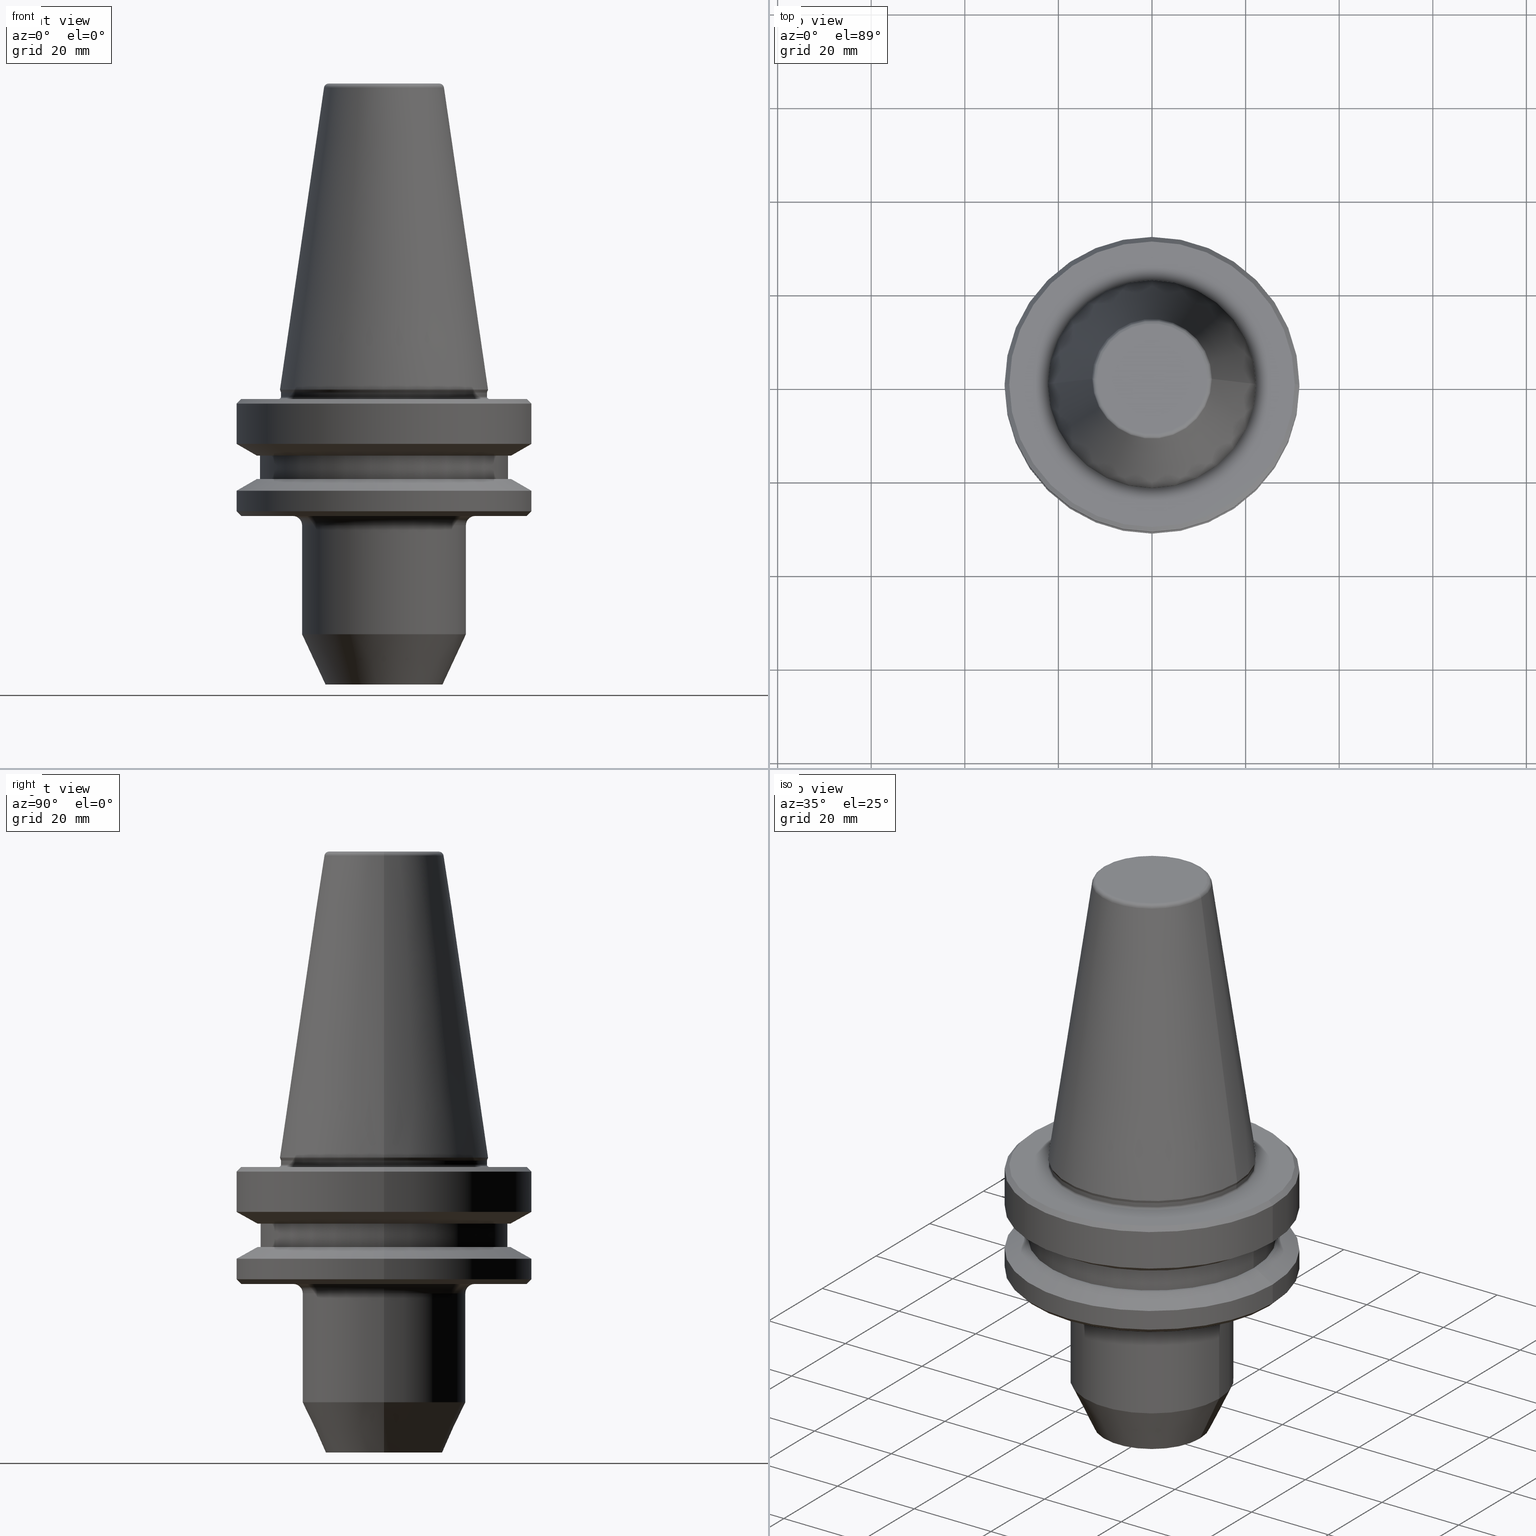
[diagram: canonical four-view strip — front | top / right | iso, engineering-drawing reading convention]
A machine part, canonical four-view strip (front | top / right | iso — engineering-drawing reading convention). The complete STEP part file that produces these views, byte-faithful:
ISO-10303-21;
HEADER;
FILE_DESCRIPTION (( 'STEP AP203' ),
    '1' );
FILE_NAME ('BT40 WE10 063 AD-6.3G15000 SL.STEP',
    '2019-05-22T08:01:58',
    ( '' ),
    ( '' ),
    'SwSTEP 2.0',
    'SolidWorks 2014',
    '' );
FILE_SCHEMA (( 'CONFIG_CONTROL_DESIGN' ));
ENDSEC;

DATA;
#1 = DIRECTION ( 'NONE',  ( -0.0000000000000000000, -0.0000000000000000000, 1.000000000000000000 ) ) ;
#2 = CARTESIAN_POINT ( 'NONE',  ( -19.49999999999829500, 2.388061258337130300E-015, -29.00000000008767700 ) ) ;
#3 = ORIENTED_EDGE ( 'NONE', *, *, #750, .F. ) ;
#4 = CARTESIAN_POINT ( 'NONE',  ( 31.49999999999997200, 0.0000000000000000000, -2.999999999999780600 ) ) ;
#5 = AXIS2_PLACEMENT_3D ( 'NONE', #429, #679, #392 ) ;
#6 = DIRECTION ( 'NONE',  ( 1.000000000000000000, 0.0000000000000000000, 0.0000000000000000000 ) ) ;
#7 = DIRECTION ( 'NONE',  ( 1.000000000000000000, 0.0000000000000000000, 0.0000000000000000000 ) ) ;
#8 = ORIENTED_EDGE ( 'NONE', *, *, #312, .F. ) ;
#9 = CIRCLE ( 'NONE', #393, 31.49999999999997200 ) ;
#10 = ORIENTED_EDGE ( 'NONE', *, *, #820, .T. ) ;
#11 = ORIENTED_EDGE ( 'NONE', *, *, #296, .T. ) ;
#12 = VERTEX_POINT ( 'NONE', #1018 ) ;
#13 = DATE_TIME_ROLE ( 'creation_date' ) ;
#14 = FACE_OUTER_BOUND ( 'NONE', #314, .T. ) ;
#15 = EDGE_CURVE ( 'NONE', #321, #675, #560, .T. ) ;
#16 = CC_DESIGN_PERSON_AND_ORGANIZATION_ASSIGNMENT ( #116, #673, ( #830 ) ) ;
#17 = VERTEX_POINT ( 'NONE', #318 ) ;
#18 = DIRECTION ( 'NONE',  ( -0.0000000000000000000, -0.0000000000000000000, 1.000000000000000000 ) ) ;
#19 = EDGE_CURVE ( 'NONE', #173, #77, #533, .T. ) ;
#20 = DIRECTION ( 'NONE',  ( -0.0000000000000000000, -0.0000000000000000000, 1.000000000000000000 ) ) ;
#21 = ORIENTED_EDGE ( 'NONE', *, *, #323, .F. ) ;
#22 = EDGE_LOOP ( 'NONE', ( #222, #917, #553, #281 ) ) ;
#23 = DIRECTION ( 'NONE',  ( -0.0000000000000000000, -0.0000000000000000000, 1.000000000000000000 ) ) ;
#24 = FACE_OUTER_BOUND ( 'NONE', #888, .T. ) ;
#25 = LINE ( 'NONE', #699, #771 ) ;
#26 = CARTESIAN_POINT ( 'NONE',  ( 0.0000000000000000000, 0.0000000000000000000, -63.00000000011224400 ) ) ;
#27 = VERTEX_POINT ( 'NONE', #873 ) ;
#28 = AXIS2_PLACEMENT_3D ( 'NONE', #838, #96, #432 ) ;
#29 = ORIENTED_EDGE ( 'NONE', *, *, #123, .F. ) ;
#30 = DIRECTION ( 'NONE',  ( 1.000000000000000000, 0.0000000000000000000, 0.0000000000000000000 ) ) ;
#31 = AXIS2_PLACEMENT_3D ( 'NONE', #676, #1004, #66 ) ;
#32 = EDGE_CURVE ( 'NONE', #290, #827, #829, .T. ) ;
#33 = EDGE_LOOP ( 'NONE', ( #270, #756, #724, #1038 ) ) ;
#34 = DIRECTION ( 'NONE',  ( -0.0000000000000000000, -0.0000000000000000000, 1.000000000000000000 ) ) ;
#35 = EDGE_LOOP ( 'NONE', ( #540, #254, #584, #300 ) ) ;
#36 = CARTESIAN_POINT ( 'NONE',  ( -21.99999999999990800, 2.694222958124166900E-015, -0.6887132116596972300 ) ) ;
#37 = CIRCLE ( 'NONE', #142, 31.49999999999997200 ) ;
#38 = DIRECTION ( 'NONE',  ( 1.000000000000000000, 0.0000000000000000000, 0.0000000000000000000 ) ) ;
#39 = EDGE_CURVE ( 'NONE', #492, #925, #869, .T. ) ;
#40 = EDGE_CURVE ( 'NONE', #175, #48, #803, .T. ) ;
#41 = DIRECTION ( 'NONE',  ( 1.000000000000000000, 0.0000000000000000000, 0.0000000000000000000 ) ) ;
#42 = CARTESIAN_POINT ( 'NONE',  ( 0.0000000000000000000, 0.0000000000000000000, -21.60014200640453200 ) ) ;
#43 = DIRECTION ( 'NONE',  ( 1.000000000000000000, 0.0000000000000000000, 0.0000000000000000000 ) ) ;
#44 = VERTEX_POINT ( 'NONE', #36 ) ;
#45 = ORIENTED_EDGE ( 'NONE', *, *, #1033, .T. ) ;
#46 = EDGE_CURVE ( 'NONE', #670, #619, #971, .T. ) ;
#47 = PLANE ( 'NONE',  #926 ) ;
#48 = VERTEX_POINT ( 'NONE', #355 ) ;
#49 = VECTOR ( 'NONE', #327, 1000.000000000000000 ) ;
#50 = CIRCLE ( 'NONE', #1013, 0.4000000000000600300 ) ;
#51 = CARTESIAN_POINT ( 'NONE',  ( 0.0000000000000000000, 0.0000000000000000000, -1.999999999999779700 ) ) ;
#52 = DIRECTION ( 'NONE',  ( 1.000000000000000000, 0.0000000000000000000, 0.0000000000000000000 ) ) ;
#53 = EDGE_CURVE ( 'NONE', #1024, #218, #464, .T. ) ;
#54 = CARTESIAN_POINT ( 'NONE',  ( 0.0000000000000000000, 0.0000000000000000000, -1.999999999999779700 ) ) ;
#55 = CARTESIAN_POINT ( 'NONE',  ( -22.02412295168563700, 2.697177167680957100E-015, -0.5519051543291797500 ) ) ;
#56 = ORIENTED_EDGE ( 'NONE', *, *, #984, .F. ) ;
#57 = ORIENTED_EDGE ( 'NONE', *, *, #901, .F. ) ;
#58 = EDGE_LOOP ( 'NONE', ( #244, #651 ) ) ;
#59 = LOCAL_TIME ( 13, 31, 58.00000000000000000, #284 ) ;
#60 = ORIENTED_EDGE ( 'NONE', *, *, #39, .T. ) ;
#61 = CC_DESIGN_APPROVAL ( #178, ( #772 ) ) ;
#62 = CARTESIAN_POINT ( 'NONE',  ( 0.0000000000000000000, 0.0000000000000000000, -14.09999999999966700 ) ) ;
#63 = TOROIDAL_SURFACE ( 'NONE', #755, 19.49999999999829500, 2.000000000000001800 ) ;
#64 = ORIENTED_EDGE ( 'NONE', *, *, #984, .T. ) ;
#65 = PLANE ( 'NONE',  #950 ) ;
#66 = DIRECTION ( 'NONE',  ( 1.000000000000000000, 0.0000000000000000000, 0.0000000000000000000 ) ) ;
#67 = AXIS2_PLACEMENT_3D ( 'NONE', #320, #340, #158 ) ;
#68 = CARTESIAN_POINT ( 'NONE',  ( -11.82266927716824200, 1.508450817090343500E-015, 65.40000000000067400 ) ) ;
#69 = CARTESIAN_POINT ( 'NONE',  ( 0.0000000000000000000, 0.0000000000000000000, 65.40000000000067400 ) ) ;
#70 = ORIENTED_EDGE ( 'NONE', *, *, #150, .T. ) ;
#71 = DIRECTION ( 'NONE',  ( -0.0000000000000000000, -0.0000000000000000000, 1.000000000000000000 ) ) ;
#72 = EDGE_CURVE ( 'NONE', #444, #141, #591, .T. ) ;
#73 = CARTESIAN_POINT ( 'NONE',  ( -31.50000000000019500, 3.857637417314186400E-015, -26.00000000008745400 ) ) ;
#74 = ORIENTED_EDGE ( 'NONE', *, *, #150, .F. ) ;
#75 = FACE_OUTER_BOUND ( 'NONE', #881, .T. ) ;
#76 = CARTESIAN_POINT ( 'NONE',  ( 27.16962701892167300, 3.592478546794586600E-015, -19.10000000008738000 ) ) ;
#77 = VERTEX_POINT ( 'NONE', #374 ) ;
#78 = DIRECTION ( 'NONE',  ( 1.000000000000000000, 0.0000000000000000000, 0.0000000000000000000 ) ) ;
#79 = DIRECTION ( 'NONE',  ( 1.000000000000000000, 0.0000000000000000000, 0.0000000000000000000 ) ) ;
#80 = DIRECTION ( 'NONE',  ( -0.0000000000000000000, -0.0000000000000000000, 1.000000000000000000 ) ) ;
#81 = EDGE_CURVE ( 'NONE', #203, #906, #1021, .T. ) ;
#82 = CARTESIAN_POINT ( 'NONE',  ( 11.82266927716813000, 0.0000000000000000000, 64.40000000000067400 ) ) ;
#83 = CARTESIAN_POINT ( 'NONE',  ( 0.0000000000000000000, 0.0000000000000000000, -1.499999999999779300 ) ) ;
#84 = AXIS2_PLACEMENT_3D ( 'NONE', #549, #386, #78 ) ;
#85 = CARTESIAN_POINT ( 'NONE',  ( 0.0000000000000000000, 0.0000000000000000000, -1.499999999999779300 ) ) ;
#86 = VERTEX_POINT ( 'NONE', #693 ) ;
#87 = EDGE_LOOP ( 'NONE', ( #793, #482 ) ) ;
#88 =( LENGTH_UNIT ( ) NAMED_UNIT ( * ) SI_UNIT ( .MILLI., .METRE. ) );
#89 = CALENDAR_DATE ( 2019, 22, 5 ) ;
#90 = EDGE_CURVE ( 'NONE', #623, #367, #561, .T. ) ;
#91 = FACE_OUTER_BOUND ( 'NONE', #132, .T. ) ;
#92 = DIRECTION ( 'NONE',  ( -0.0000000000000000000, -0.0000000000000000000, 1.000000000000000000 ) ) ;
#93 = PERSON ( 'UNSPECIFIED', 'UNSPECIFIED', 'UNSPECIFIED', ('UNSPECIFIED'), ('UNSPECIFIED'), ('UNSPECIFIED') ) ;
#94 = DIRECTION ( 'NONE',  ( -0.0000000000000000000, -0.0000000000000000000, 1.000000000000000000 ) ) ;
#95 = ADVANCED_FACE ( 'NONE', ( #760 ), #1047, .T. ) ;
#96 = DIRECTION ( 'NONE',  ( 1.224646799147353200E-016, 1.000000000000000000, 0.0000000000000000000 ) ) ;
#97 = APPROVAL_ROLE ( '' ) ;
#98 = CARTESIAN_POINT ( 'NONE',  ( 0.0000000000000000000, 30.49999999999997200, -27.00000000008767700 ) ) ;
#99 = AXIS2_PLACEMENT_3D ( 'NONE', #2, #566, #309 ) ;
#100 = TOROIDAL_SURFACE ( 'NONE', #914, 22.49999999999996400, 0.5000000000000282000 ) ;
#101 = ADVANCED_FACE ( 'NONE', ( #935 ), #777, .T. ) ;
#102 = ORIENTED_EDGE ( 'NONE', *, *, #1034, .F. ) ;
#103 = ORIENTED_EDGE ( 'NONE', *, *, #959, .T. ) ;
#104 = LINE ( 'NONE', #250, #507 ) ;
#105 = APPLICATION_CONTEXT ( 'configuration controlled 3d designs of mechanical parts and assemblies' ) ;
#106 = DIRECTION ( 'NONE',  ( 1.000000000000000000, 0.0000000000000000000, 0.0000000000000000000 ) ) ;
#107 = EDGE_LOOP ( 'NONE', ( #21, #682, #635, #996 ) ) ;
#108 = DIRECTION ( 'NONE',  ( 0.0000000000000000000, -0.0000000000000000000, 1.000000000000000000 ) ) ;
#109 = PLANE ( 'NONE',  #836 ) ;
#110 = AXIS2_PLACEMENT_3D ( 'NONE', #265, #913, #819 ) ;
#111 = DIRECTION ( 'NONE',  ( 1.000000000000000000, 0.0000000000000000000, 0.0000000000000000000 ) ) ;
#112 = VERTEX_POINT ( 'NONE', #968 ) ;
#113 = ORIENTED_EDGE ( 'NONE', *, *, #610, .F. ) ;
#114 = DIRECTION ( 'NONE',  ( -0.0000000000000000000, -0.0000000000000000000, 1.000000000000000000 ) ) ;
#115 = EDGE_LOOP ( 'NONE', ( #236, #842, #997, #1000 ) ) ;
#116 = PERSON_AND_ORGANIZATION ( #93, #437 ) ;
#117 = LINE ( 'NONE', #462, #910 ) ;
#118 = AXIS2_PLACEMENT_3D ( 'NONE', #430, #18, #226 ) ;
#119 = EDGE_LOOP ( 'NONE', ( #152, #103 ) ) ;
#120 = DIRECTION ( 'NONE',  ( 0.0000000000000000000, -1.000000000000000000, 0.0000000000000000000 ) ) ;
#121 = CARTESIAN_POINT ( 'NONE',  ( 0.0000000000000000000, 26.50000000000019200, -19.10000000008738000 ) ) ;
#122 = AXIS2_PLACEMENT_3D ( 'NONE', #69, #939, #1005 ) ;
#123 = EDGE_CURVE ( 'NONE', #1015, #565, #942, .T. ) ;
#124 = ORIENTED_EDGE ( 'NONE', *, *, #678, .F. ) ;
#125 = ORIENTED_EDGE ( 'NONE', *, *, #610, .T. ) ;
#126 = CARTESIAN_POINT ( 'NONE',  ( 0.0000000000000000000, 0.0000000000000000000, -2.999999999999780600 ) ) ;
#127 = EDGE_LOOP ( 'NONE', ( #124, #29 ) ) ;
#128 = CIRCLE ( 'NONE', #369, 0.5000000000000282000 ) ;
#129 = CIRCLE ( 'NONE', #311, 17.49999999999829500 ) ;
#130 = DIRECTION ( 'NONE',  ( 1.000000000000000000, 0.0000000000000000000, 0.0000000000000000000 ) ) ;
#131 = EDGE_CURVE ( 'NONE', #218, #86, #234, .T. ) ;
#132 = EDGE_LOOP ( 'NONE', ( #434, #381, #611, #609 ) ) ;
#133 = EDGE_LOOP ( 'NONE', ( #387, #1020, #517, #445 ) ) ;
#134 = CARTESIAN_POINT ( 'NONE',  ( 0.0000000000000000000, 0.0000000000000000000, -19.10000000008738000 ) ) ;
#135 = DIRECTION ( 'NONE',  ( -0.0000000000000000000, -0.0000000000000000000, 1.000000000000000000 ) ) ;
#136 = CARTESIAN_POINT ( 'NONE',  ( 0.0000000000000000000, 0.0000000000000000000, 121.2238565293478600 ) ) ;
#137 = DIRECTION ( 'NONE',  ( 1.000000000000000000, 0.0000000000000000000, 0.0000000000000000000 ) ) ;
#138 = AXIS2_PLACEMENT_3D ( 'NONE', #644, #80, #6 ) ;
#139 = EDGE_LOOP ( 'NONE', ( #8, #316, #60, #56 ) ) ;
#140 = CARTESIAN_POINT ( 'NONE',  ( 0.0000000000000000000, 0.0000000000000000000, -29.00000000008767700 ) ) ;
#141 = VERTEX_POINT ( 'NONE', #159 ) ;
#142 = AXIS2_PLACEMENT_3D ( 'NONE', #397, #964, #892 ) ;
#143 = DIRECTION ( 'NONE',  ( 1.000000000000000000, 0.0000000000000000000, 0.0000000000000000000 ) ) ;
#144 = ORIENTED_EDGE ( 'NONE', *, *, #572, .T. ) ;
#145 = COORDINATED_UNIVERSAL_TIME_OFFSET ( 5, 30, .AHEAD. ) ;
#146 = FACE_OUTER_BOUND ( 'NONE', #115, .T. ) ;
#147 = CARTESIAN_POINT ( 'NONE',  ( 0.0000000000000000000, 0.0000000000000000000, -0.5519051543291797500 ) ) ;
#148 = ORIENTED_EDGE ( 'NONE', *, *, #636, .T. ) ;
#149 = CC_DESIGN_PERSON_AND_ORGANIZATION_ASSIGNMENT ( #213, #832, ( #745 ) ) ;
#150 = EDGE_CURVE ( 'NONE', #418, #837, #399, .T. ) ;
#151 = ORIENTED_EDGE ( 'NONE', *, *, #846, .F. ) ;
#152 = ORIENTED_EDGE ( 'NONE', *, *, #857, .T. ) ;
#153 = CONICAL_SURFACE ( 'NONE', #110, 22.22499999999993700, 0.1448138077623203600 ) ;
#154 = DIRECTION ( 'NONE',  ( -0.7071067811865474600, 0.0000000000000000000, -0.7071067811865475700 ) ) ;
#155 = ORIENTED_EDGE ( 'NONE', *, *, #1022, .T. ) ;
#156 = DIRECTION ( 'NONE',  ( 1.000000000000000000, 0.0000000000000000000, 0.0000000000000000000 ) ) ;
#157 = VECTOR ( 'NONE', #576, 1000.000000000000000 ) ;
#158 = DIRECTION ( 'NONE',  ( 1.000000000000000000, 0.0000000000000000000, 0.0000000000000000000 ) ) ;
#159 = CARTESIAN_POINT ( 'NONE',  ( -26.50000000000019200, 3.245314017740509400E-015, -14.09999999999966700 ) ) ;
#160 = ORIENTED_EDGE ( 'NONE', *, *, #751, .T. ) ;
#161 = AXIS2_PLACEMENT_3D ( 'NONE', #209, #802, #898 ) ;
#162 = CARTESIAN_POINT ( 'NONE',  ( -30.49999999999997200, 0.0000000000000000000, -1.999999999999779700 ) ) ;
#163 = CIRCLE ( 'NONE', #5, 12.81220206925726000 ) ;
#164 = ORIENTED_EDGE ( 'NONE', *, *, #246, .T. ) ;
#165 = DIRECTION ( 'NONE',  ( 0.4226182617407009400, 0.0000000000000000000, 0.9063077870366492700 ) ) ;
#166 = LINE ( 'NONE', #578, #722 ) ;
#167 = ORIENTED_EDGE ( 'NONE', *, *, #427, .F. ) ;
#168 = LOCAL_TIME ( 13, 31, 58.00000000000000000, #379 ) ;
#169 = ORIENTED_EDGE ( 'NONE', *, *, #46, .F. ) ;
#170 = CARTESIAN_POINT ( 'NONE',  ( 0.0000000000000000000, 0.0000000000000000000, -27.00000000008767700 ) ) ;
#171 = DIRECTION ( 'NONE',  ( 1.000000000000000000, 0.0000000000000000000, 0.0000000000000000000 ) ) ;
#172 = CYLINDRICAL_SURFACE ( 'NONE', #305, 26.50000000000019200 ) ;
#173 = VERTEX_POINT ( 'NONE', #219 ) ;
#174 = DIRECTION ( 'NONE',  ( -0.0000000000000000000, -0.0000000000000000000, 1.000000000000000000 ) ) ;
#175 = VERTEX_POINT ( 'NONE', #476 ) ;
#176 = CARTESIAN_POINT ( 'NONE',  ( 0.0000000000000000000, 0.0000000000000000000, -29.00000000008767700 ) ) ;
#177 = DIRECTION ( 'NONE',  ( -0.3420201433262496900, 4.188538737684106900E-017, 0.9396926207856969300 ) ) ;
#178 = APPROVAL ( #421, 'UNSPECIFIED' ) ;
#179 = DIRECTION ( 'NONE',  ( -0.0000000000000000000, -0.0000000000000000000, 1.000000000000000000 ) ) ;
#180 = PERSON_AND_ORGANIZATION_ROLE ( 'design_supplier' ) ;
#181 = ORIENTED_EDGE ( 'NONE', *, *, #479, .T. ) ;
#182 = ORIENTED_EDGE ( 'NONE', *, *, #703, .F. ) ;
#183 = PRODUCT_RELATED_PRODUCT_CATEGORY ( 'detail', '', ( #745 ) ) ;
#184 = FACE_OUTER_BOUND ( 'NONE', #481, .T. ) ;
#185 = CARTESIAN_POINT ( 'NONE',  ( 22.49999999999996400, 0.0000000000000000000, -1.499999999999779300 ) ) ;
#186 = DIRECTION ( 'NONE',  ( -0.0000000000000000000, -0.0000000000000000000, 1.000000000000000000 ) ) ;
#187 = DIRECTION ( 'NONE',  ( -0.0000000000000000000, -0.0000000000000000000, 1.000000000000000000 ) ) ;
#188 = EDGE_LOOP ( 'NONE', ( #388, #356, #299, #599 ) ) ;
#189 = CALENDAR_DATE ( 2019, 22, 5 ) ;
#190 = FACE_OUTER_BOUND ( 'NONE', #413, .T. ) ;
#191 = EDGE_CURVE ( 'NONE', #77, #827, #974, .T. ) ;
#192 = EDGE_LOOP ( 'NONE', ( #794, #978, #422, #727 ) ) ;
#193 = DIRECTION ( 'NONE',  ( 0.0000000000000000000, 0.0000000000000000000, -1.000000000000000000 ) ) ;
#194 = ADVANCED_FACE ( 'NONE', ( #515 ), #100, .F. ) ;
#195 = EDGE_CURVE ( 'NONE', #492, #210, #383, .T. ) ;
#196 = CARTESIAN_POINT ( 'NONE',  ( 0.0000000000000000000, 0.0000000000000000000, -0.5519051543291797500 ) ) ;
#197 = ORIENTED_EDGE ( 'NONE', *, *, #415, .T. ) ;
#198 = ORIENTED_EDGE ( 'NONE', *, *, #946, .F. ) ;
#199 = CIRCLE ( 'NONE', #391, 30.49999999999997200 ) ;
#200 = DIRECTION ( 'NONE',  ( 1.000000000000000000, 0.0000000000000000000, 0.0000000000000000000 ) ) ;
#201 = ADVANCED_FACE ( 'NONE', ( #990 ), #217, .T. ) ;
#202 = AXIS2_PLACEMENT_3D ( 'NONE', #170, #729, #653 ) ;
#203 = VERTEX_POINT ( 'NONE', #68 ) ;
#204 = AXIS2_PLACEMENT_3D ( 'NONE', #627, #608, #941 ) ;
#205 = DIRECTION ( 'NONE',  ( 1.000000000000000000, 0.0000000000000000000, 0.0000000000000000000 ) ) ;
#206 = DIRECTION ( 'NONE',  ( 1.000000000000000000, 0.0000000000000000000, 0.0000000000000000000 ) ) ;
#207 = DIRECTION ( 'NONE',  ( 1.000000000000000000, 0.0000000000000000000, 0.0000000000000000000 ) ) ;
#208 =( NAMED_UNIT ( * ) PLANE_ANGLE_UNIT ( ) SI_UNIT ( $, .RADIAN. ) );
#209 = CARTESIAN_POINT ( 'NONE',  ( 0.0000000000000000000, 0.0000000000000000000, -27.00000000008767700 ) ) ;
#210 = VERTEX_POINT ( 'NONE', #689 ) ;
#211 = EDGE_LOOP ( 'NONE', ( #224, #597, #981, #282 ) ) ;
#212 = EDGE_LOOP ( 'NONE', ( #650, #487, #494, #528 ) ) ;
#213 = PERSON_AND_ORGANIZATION ( #93, #437 ) ;
#214 = CLOSED_SHELL ( 'NONE', ( #759, #973, #885, #688, #551, #370, #736, #889, #900, #883, #582, #933, #799, #841, #1048, #952, #354, #546, #252, #101, #631, #924, #261, #466, #915, #979, #811, #770, #659, #201, #615, #95, #991, #194, #563, #782, #498, #338 ) ) ;
#215 = CARTESIAN_POINT ( 'NONE',  ( 31.50000000000019500, 3.857637417314186400E-015, -21.60014200640453200 ) ) ;
#216 = CIRCLE ( 'NONE', #691, 2.000000000000001800 ) ;
#217 = CONICAL_SURFACE ( 'NONE', #538, 27.16962701892289200, 1.047197551196600300 ) ;
#218 = VERTEX_POINT ( 'NONE', #76 ) ;
#219 = CARTESIAN_POINT ( 'NONE',  ( 21.99999999999993600, 0.0000000000000000000, -1.499999999999779300 ) ) ;
#220 = ORIENTED_EDGE ( 'NONE', *, *, #534, .T. ) ;
#221 = EDGE_CURVE ( 'NONE', #86, #426, #573, .T. ) ;
#222 = ORIENTED_EDGE ( 'NONE', *, *, #923, .F. ) ;
#223 = VECTOR ( 'NONE', #559, 1000.000000000000000 ) ;
#224 = ORIENTED_EDGE ( 'NONE', *, *, #195, .T. ) ;
#225 = AXIS2_PLACEMENT_3D ( 'NONE', #237, #1, #326 ) ;
#226 = DIRECTION ( 'NONE',  ( 1.000000000000000000, 0.0000000000000000000, 0.0000000000000000000 ) ) ;
#227 = ORIENTED_EDGE ( 'NONE', *, *, #90, .F. ) ;
#228 = LINE ( 'NONE', #824, #424 ) ;
#229 = FACE_OUTER_BOUND ( 'NONE', #188, .T. ) ;
#230 = DIRECTION ( 'NONE',  ( -0.0000000000000000000, -0.0000000000000000000, 1.000000000000000000 ) ) ;
#231 = DIRECTION ( 'NONE',  ( 1.000000000000000000, 0.0000000000000000000, 0.0000000000000000000 ) ) ;
#232 = AXIS2_PLACEMENT_3D ( 'NONE', #754, #604, #207 ) ;
#233 = CYLINDRICAL_SURFACE ( 'NONE', #995, 21.99999999999992200 ) ;
#234 = LINE ( 'NONE', #215, #818 ) ;
#235 = DIRECTION ( 'NONE',  ( 0.0000000000000000000, -1.000000000000000000, 0.0000000000000000000 ) ) ;
#236 = ORIENTED_EDGE ( 'NONE', *, *, #969, .T. ) ;
#237 = CARTESIAN_POINT ( 'NONE',  ( 0.0000000000000000000, 0.0000000000000000000, 64.40000000000067400 ) ) ;
#238 = DIRECTION ( 'NONE',  ( 1.000000000000000000, 0.0000000000000000000, 0.0000000000000000000 ) ) ;
#239 = ORIENTED_EDGE ( 'NONE', *, *, #373, .T. ) ;
#240 = LINE ( 'NONE', #891, #686 ) ;
#241 = FACE_BOUND ( 'NONE', #87, .T. ) ;
#242 = CARTESIAN_POINT ( 'NONE',  ( 0.0000000000000000000, 0.0000000000000000000, 121.2238565293478600 ) ) ;
#243 = APPROVAL_ROLE ( '' ) ;
#244 = ORIENTED_EDGE ( 'NONE', *, *, #195, .F. ) ;
#245 = CARTESIAN_POINT ( 'NONE',  ( 0.0000000000000000000, 0.0000000000000000000, -52.27746539756472500 ) ) ;
#246 = EDGE_CURVE ( 'NONE', #623, #645, #25, .T. ) ;
#247 = CARTESIAN_POINT ( 'NONE',  ( 0.0000000000000000000, 0.0000000000000000000, 121.2238565293478600 ) ) ;
#248 = AXIS2_PLACEMENT_3D ( 'NONE', #62, #927, #363 ) ;
#249 = DIRECTION ( 'NONE',  ( 1.000000000000000000, 0.0000000000000000000, 0.0000000000000000000 ) ) ;
#250 = CARTESIAN_POINT ( 'NONE',  ( 21.99999999999992200, 0.0000000000000000000, 121.2238565293478600 ) ) ;
#251 = ORIENTED_EDGE ( 'NONE', *, *, #53, .T. ) ;
#252 = ADVANCED_FACE ( 'NONE', ( #656 ), #65, .F. ) ;
#253 = TOROIDAL_SURFACE ( 'NONE', #225, 11.82266927716813000, 0.9999999999999742400 ) ;
#254 = ORIENTED_EDGE ( 'NONE', *, *, #442, .T. ) ;
#255 = ORIENTED_EDGE ( 'NONE', *, *, #19, .T. ) ;
#256 = MECHANICAL_CONTEXT ( 'NONE', #105, 'mechanical' ) ;
#257 = CIRCLE ( 'NONE', #938, 19.49999999999829500 ) ;
#258 = DIRECTION ( 'NONE',  ( 1.000000000000000000, 0.0000000000000000000, 0.0000000000000000000 ) ) ;
#259 = DIRECTION ( 'NONE',  ( -0.0000000000000000000, -0.0000000000000000000, 1.000000000000000000 ) ) ;
#260 = PERSON_AND_ORGANIZATION_ROLE ( 'classification_officer' ) ;
#261 = ADVANCED_FACE ( 'NONE', ( #361, #241 ), #761, .F. ) ;
#262 = EDGE_CURVE ( 'NONE', #645, #1051, #409, .T. ) ;
#263 = CIRCLE ( 'NONE', #646, 31.50000000000019500 ) ;
#264 = DIRECTION ( 'NONE',  ( 1.000000000000000000, 0.0000000000000000000, 0.0000000000000000000 ) ) ;
#265 = CARTESIAN_POINT ( 'NONE',  ( 0.0000000000000000000, 0.0000000000000000000, 0.0000000000000000000 ) ) ;
#266 = DIRECTION ( 'NONE',  ( 0.0000000000000000000, -1.000000000000000000, 0.0000000000000000000 ) ) ;
#267 = ORIENTED_EDGE ( 'NONE', *, *, #131, .T. ) ;
#268 = EDGE_LOOP ( 'NONE', ( #994, #1014 ) ) ;
#269 = DIRECTION ( 'NONE',  ( 0.0000000000000000000, -0.0000000000000000000, 1.000000000000000000 ) ) ;
#270 = ORIENTED_EDGE ( 'NONE', *, *, #344, .F. ) ;
#271 = CONICAL_SURFACE ( 'NONE', #805, 12.49999999999840100, 0.4363323129985840500 ) ;
#272 = DIRECTION ( 'NONE',  ( 1.000000000000000000, 0.0000000000000000000, 0.0000000000000000000 ) ) ;
#273 = EDGE_CURVE ( 'NONE', #141, #444, #600, .T. ) ;
#274 = FACE_BOUND ( 'NONE', #781, .T. ) ;
#275 = CIRCLE ( 'NONE', #1027, 0.9999999999999731300 ) ;
#276 = DIRECTION ( 'NONE',  ( -0.0000000000000000000, -0.0000000000000000000, 1.000000000000000000 ) ) ;
#277 = CARTESIAN_POINT ( 'NONE',  ( 0.0000000000000000000, 0.0000000000000000000, -14.09999999999966700 ) ) ;
#278 = EDGE_CURVE ( 'NONE', #906, #203, #847, .T. ) ;
#279 = ORIENTED_EDGE ( 'NONE', *, *, #750, .T. ) ;
#280 = LINE ( 'NONE', #294, #49 ) ;
#281 = ORIENTED_EDGE ( 'NONE', *, *, #341, .F. ) ;
#282 = ORIENTED_EDGE ( 'NONE', *, *, #39, .F. ) ;
#283 = DIRECTION ( 'NONE',  ( 1.000000000000000000, 0.0000000000000000000, 0.0000000000000000000 ) ) ;
#284 = COORDINATED_UNIVERSAL_TIME_OFFSET ( 5, 30, .AHEAD. ) ;
#285 = CONICAL_SURFACE ( 'NONE', #902, 31.50000000000019500, 1.047197551196600500 ) ;
#286 = CARTESIAN_POINT ( 'NONE',  ( -31.49999999999997200, 0.0000000000000000000, -2.999999999999780600 ) ) ;
#287 = DIRECTION ( 'NONE',  ( 1.000000000000000000, 0.0000000000000000000, 0.0000000000000000000 ) ) ;
#288 = AXIS2_PLACEMENT_3D ( 'NONE', #624, #780, #513 ) ;
#289 = AXIS2_PLACEMENT_3D ( 'NONE', #524, #276, #41 ) ;
#290 = VERTEX_POINT ( 'NONE', #438 ) ;
#291 = DIRECTION ( 'NONE',  ( -0.0000000000000000000, -0.0000000000000000000, 1.000000000000000000 ) ) ;
#292 = CIRCLE ( 'NONE', #1040, 22.22499999999993700 ) ;
#293 = EDGE_LOOP ( 'NONE', ( #448, #169, #220, #160 ) ) ;
#294 = CARTESIAN_POINT ( 'NONE',  ( -30.49999999999997200, 3.735172737399423600E-015, -27.00000000008767700 ) ) ;
#295 = CARTESIAN_POINT ( 'NONE',  ( -22.22499999999993700, 0.0000000000000000000, 0.0000000000000000000 ) ) ;
#296 = EDGE_CURVE ( 'NONE', #173, #290, #128, .T. ) ;
#297 = DIRECTION ( 'NONE',  ( -0.0000000000000000000, -0.0000000000000000000, 1.000000000000000000 ) ) ;
#298 = ORIENTED_EDGE ( 'NONE', *, *, #415, .F. ) ;
#299 = ORIENTED_EDGE ( 'NONE', *, *, #946, .T. ) ;
#300 = ORIENTED_EDGE ( 'NONE', *, *, #751, .F. ) ;
#301 = LOCAL_TIME ( 13, 31, 58.00000000000000000, #521 ) ;
#302 = DIRECTION ( 'NONE',  ( 0.3420201433262496900, 0.0000000000000000000, 0.9396926207856969300 ) ) ;
#303 = FACE_OUTER_BOUND ( 'NONE', #350, .T. ) ;
#304 = VECTOR ( 'NONE', #353, 1000.000000000000000 ) ;
#305 = AXIS2_PLACEMENT_3D ( 'NONE', #458, #520, #264 ) ;
#306 = PRODUCT_DEFINITION_SHAPE ( 'NONE', 'NONE',  #772 ) ;
#307 = DIRECTION ( 'NONE',  ( 1.224646799147353200E-016, 1.000000000000000000, 0.0000000000000000000 ) ) ;
#308 = CARTESIAN_POINT ( 'NONE',  ( 0.0000000000000000000, 0.0000000000000000000, -1.999999999999779700 ) ) ;
#309 = DIRECTION ( 'NONE',  ( -1.000000000000000000, 1.224646799147353500E-016, 0.0000000000000000000 ) ) ;
#310 = CARTESIAN_POINT ( 'NONE',  ( 19.49999999999829500, 0.0000000000000000000, -29.00000000008767700 ) ) ;
#311 = AXIS2_PLACEMENT_3D ( 'NONE', #245, #114, #797 ) ;
#312 = EDGE_CURVE ( 'NONE', #210, #568, #346, .T. ) ;
#313 = DATE_TIME_ROLE ( 'classification_date' ) ;
#314 = EDGE_LOOP ( 'NONE', ( #539, #970, #400, #536 ) ) ;
#315 = DIRECTION ( 'NONE',  ( -0.0000000000000000000, -0.0000000000000000000, 1.000000000000000000 ) ) ;
#316 = ORIENTED_EDGE ( 'NONE', *, *, #428, .T. ) ;
#317 = CIRCLE ( 'NONE', #1001, 17.49999999999829500 ) ;
#318 = CARTESIAN_POINT ( 'NONE',  ( -30.49999999999997200, 3.796405077356805400E-015, -27.00000000008767700 ) ) ;
#319 = CIRCLE ( 'NONE', #905, 31.50000000000019500 ) ;
#320 = CARTESIAN_POINT ( 'NONE',  ( 0.0000000000000000000, 0.0000000000000000000, -0.6887132116596972300 ) ) ;
#321 = VERTEX_POINT ( 'NONE', #870 ) ;
#322 = VERTEX_POINT ( 'NONE', #634 ) ;
#323 = EDGE_CURVE ( 'NONE', #17, #459, #280, .T. ) ;
#324 = CONICAL_SURFACE ( 'NONE', #758, 31.49999999999997200, 0.7853981633974482800 ) ;
#325 = DIRECTION ( 'NONE',  ( -0.0000000000000000000, -0.0000000000000000000, 1.000000000000000000 ) ) ;
#326 = DIRECTION ( 'NONE',  ( 1.000000000000000000, 0.0000000000000000000, 0.0000000000000000000 ) ) ;
#327 = DIRECTION ( 'NONE',  ( -0.7071067811865474600, 8.659560562354931600E-017, 0.7071067811865475700 ) ) ;
#328 = EDGE_CURVE ( 'NONE', #568, #779, #1036, .T. ) ;
#329 = EDGE_LOOP ( 'NONE', ( #251, #181 ) ) ;
#330 = AXIS2_PLACEMENT_3D ( 'NONE', #904, #776, #516 ) ;
#331 = ORIENTED_EDGE ( 'NONE', *, *, #678, .T. ) ;
#332 = CARTESIAN_POINT ( 'NONE',  ( 0.0000000000000000000, 0.0000000000000000000, -0.6887132116596972300 ) ) ;
#333 = APPROVAL_DATE_TIME ( #541, #828 ) ;
#334 = CIRCLE ( 'NONE', #790, 30.49999999999997200 ) ;
#335 = DIRECTION ( 'NONE',  ( -0.0000000000000000000, -0.0000000000000000000, 1.000000000000000000 ) ) ;
#336 = DIRECTION ( 'NONE',  ( -1.000000000000000000, 0.0000000000000000000, 0.0000000000000000000 ) ) ;
#337 = APPLICATION_CONTEXT ( 'configuration controlled 3d designs of mechanical parts and assemblies' ) ;
#338 = ADVANCED_FACE ( 'NONE', ( #834 ), #153, .T. ) ;
#339 = DIRECTION ( 'NONE',  ( -0.0000000000000000000, -0.0000000000000000000, 1.000000000000000000 ) ) ;
#340 = DIRECTION ( 'NONE',  ( -0.0000000000000000000, -0.0000000000000000000, 1.000000000000000000 ) ) ;
#341 = EDGE_CURVE ( 'NONE', #837, #1051, #9, .T. ) ;
#342 = EDGE_LOOP ( 'NONE', ( #648, #897, #70, #567 ) ) ;
#343 = ORIENTED_EDGE ( 'NONE', *, *, #32, .F. ) ;
#344 = EDGE_CURVE ( 'NONE', #77, #44, #695, .T. ) ;
#345 = EDGE_LOOP ( 'NONE', ( #556, #1026, #11, #732 ) ) ;
#346 = LINE ( 'NONE', #552, #349 ) ;
#347 = FACE_OUTER_BOUND ( 'NONE', #119, .T. ) ;
#348 = DIRECTION ( 'NONE',  ( -1.000000000000000000, 1.224646799147355400E-016, 0.0000000000000000000 ) ) ;
#349 = VECTOR ( 'NONE', #511, 1000.000000000000000 ) ;
#350 = EDGE_LOOP ( 'NONE', ( #376, #267, #708, #57 ) ) ;
#351 = CARTESIAN_POINT ( 'NONE',  ( 0.0000000000000000000, 0.0000000000000000000, 64.54430818888884900 ) ) ;
#352 = EDGE_LOOP ( 'NONE', ( #849, #471, #671, #1007 ) ) ;
#353 = DIRECTION ( 'NONE',  ( -0.1443081888881801200, 0.0000000000000000000, -0.9895327920891825400 ) ) ;
#354 = ADVANCED_FACE ( 'NONE', ( #581 ), #253, .T. ) ;
#355 = CARTESIAN_POINT ( 'NONE',  ( 21.99999999999990800, 0.0000000000000000000, -0.6887132116596972300 ) ) ;
#356 = ORIENTED_EDGE ( 'NONE', *, *, #191, .T. ) ;
#357 = CARTESIAN_POINT ( 'NONE',  ( -27.16962701892289200, 3.592478546794647300E-015, -14.09999999999966700 ) ) ;
#358 = EDGE_CURVE ( 'NONE', #565, #444, #1010, .T. ) ;
#359 = APPROVAL_PERSON_ORGANIZATION ( #569, #828, #97 ) ;
#360 = FACE_OUTER_BOUND ( 'NONE', #192, .T. ) ;
#361 = FACE_OUTER_BOUND ( 'NONE', #268, .T. ) ;
#362 = CIRCLE ( 'NONE', #161, 30.49999999999997200 ) ;
#363 = DIRECTION ( 'NONE',  ( 1.000000000000000000, 0.0000000000000000000, 0.0000000000000000000 ) ) ;
#364 = DIRECTION ( 'NONE',  ( -0.0000000000000000000, -0.0000000000000000000, 1.000000000000000000 ) ) ;
#365 = ORIENTED_EDGE ( 'NONE', *, *, #715, .F. ) ;
#366 = CARTESIAN_POINT ( 'NONE',  ( 0.0000000000000000000, 0.0000000000000000000, -0.5519051543291797500 ) ) ;
#367 = VERTEX_POINT ( 'NONE', #357 ) ;
#368 = LINE ( 'NONE', #998, #1017 ) ;
#369 = AXIS2_PLACEMENT_3D ( 'NONE', #185, #235, #620 ) ;
#370 = ADVANCED_FACE ( 'NONE', ( #807 ), #324, .T. ) ;
#371 = CARTESIAN_POINT ( 'NONE',  ( -22.39999999999997700, 2.743208830090067900E-015, -0.6887132116596972300 ) ) ;
#372 = EDGE_CURVE ( 'NONE', #17, #321, #362, .T. ) ;
#373 = EDGE_CURVE ( 'NONE', #619, #906, #275, .T. ) ;
#374 = CARTESIAN_POINT ( 'NONE',  ( -21.99999999999993600, 2.724839128102854700E-015, -1.499999999999779300 ) ) ;
#375 = CARTESIAN_POINT ( 'NONE',  ( -31.50000000000019500, 3.857637417314186400E-015, 121.2238565293478600 ) ) ;
#376 = ORIENTED_EDGE ( 'NONE', *, *, #479, .F. ) ;
#377 = ORIENTED_EDGE ( 'NONE', *, *, #666, .T. ) ;
#378 = CARTESIAN_POINT ( 'NONE',  ( -11.82266927716813000, 1.447859408766170200E-015, 64.40000000000067400 ) ) ;
#379 = COORDINATED_UNIVERSAL_TIME_OFFSET ( 5, 30, .AHEAD. ) ;
#380 = FACE_OUTER_BOUND ( 'NONE', #352, .T. ) ;
#381 = ORIENTED_EDGE ( 'NONE', *, *, #674, .T. ) ;
#382 = DIRECTION ( 'NONE',  ( -0.0000000000000000000, -0.0000000000000000000, 1.000000000000000000 ) ) ;
#383 = CIRCLE ( 'NONE', #814, 12.49999999999840100 ) ;
#384 = AXIS2_PLACEMENT_3D ( 'NONE', #843, #20, #38 ) ;
#385 = CARTESIAN_POINT ( 'NONE',  ( -22.02412295168563700, 2.697177167680957100E-015, -0.5519051543291797500 ) ) ;
#386 = DIRECTION ( 'NONE',  ( -0.0000000000000000000, -0.0000000000000000000, 1.000000000000000000 ) ) ;
#387 = ORIENTED_EDGE ( 'NONE', *, *, #131, .F. ) ;
#388 = ORIENTED_EDGE ( 'NONE', *, *, #501, .F. ) ;
#389 = DIRECTION ( 'NONE',  ( -0.0000000000000000000, -0.0000000000000000000, 1.000000000000000000 ) ) ;
#390 = CONICAL_SURFACE ( 'NONE', #118, 30.49999999999997200, 0.7853981633974482800 ) ;
#391 = AXIS2_PLACEMENT_3D ( 'NONE', #477, #726, #1003 ) ;
#392 = DIRECTION ( 'NONE',  ( 1.000000000000000000, 0.0000000000000000000, 0.0000000000000000000 ) ) ;
#393 = AXIS2_PLACEMENT_3D ( 'NONE', #493, #135, #1025 ) ;
#394 = ORIENTED_EDGE ( 'NONE', *, *, #846, .T. ) ;
#395 = DIRECTION ( 'NONE',  ( -0.0000000000000000000, -0.0000000000000000000, 1.000000000000000000 ) ) ;
#396 = CONICAL_SURFACE ( 'NONE', #665, 30.49999999999997200, 0.7853981633974482800 ) ;
#397 = CARTESIAN_POINT ( 'NONE',  ( 0.0000000000000000000, 0.0000000000000000000, -11.59985799368334900 ) ) ;
#398 = DIRECTION ( 'NONE',  ( -1.000000000000000000, 0.0000000000000000000, -0.0000000000000000000 ) ) ;
#399 = LINE ( 'NONE', #286, #961 ) ;
#400 = ORIENTED_EDGE ( 'NONE', *, *, #703, .T. ) ;
#401 = CARTESIAN_POINT ( 'NONE',  ( 0.0000000000000000000, 0.0000000000000000000, -14.09999999999966700 ) ) ;
#402 = ORIENTED_EDGE ( 'NONE', *, *, #72, .F. ) ;
#403 = ORIENTED_EDGE ( 'NONE', *, *, #629, .T. ) ;
#404 = CIRCLE ( 'NONE', #232, 21.99999999999993600 ) ;
#405 = LOCAL_TIME ( 13, 31, 58.00000000000000000, #625 ) ;
#406 = DIRECTION ( 'NONE',  ( -0.0000000000000000000, -0.0000000000000000000, 1.000000000000000000 ) ) ;
#407 = DIRECTION ( 'NONE',  ( 0.7071067811865474600, 0.0000000000000000000, 0.7071067811865475700 ) ) ;
#408 = FACE_OUTER_BOUND ( 'NONE', #954, .T. ) ;
#409 = LINE ( 'NONE', #535, #853 ) ;
#410 = DIRECTION ( 'NONE',  ( -0.0000000000000000000, -0.0000000000000000000, 1.000000000000000000 ) ) ;
#411 = VECTOR ( 'NONE', #744, 1000.000000000000000 ) ;
#412 = CARTESIAN_POINT ( 'NONE',  ( 0.0000000000000000000, 0.0000000000000000000, 0.0000000000000000000 ) ) ;
#413 = EDGE_LOOP ( 'NONE', ( #742, #696, #125, #944 ) ) ;
#414 = AXIS2_PLACEMENT_3D ( 'NONE', #42, #508, #529 ) ;
#415 = EDGE_CURVE ( 'NONE', #1051, #837, #562, .T. ) ;
#416 = DIRECTION ( 'NONE',  ( -0.0000000000000000000, -0.0000000000000000000, 1.000000000000000000 ) ) ;
#417 = DIRECTION ( 'NONE',  ( 1.000000000000000000, 0.0000000000000000000, 0.0000000000000000000 ) ) ;
#418 = VERTEX_POINT ( 'NONE', #162 ) ;
#419 = CC_DESIGN_PERSON_AND_ORGANIZATION_ASSIGNMENT ( #602, #500, ( #772 ) ) ;
#420 = DIRECTION ( 'NONE',  ( -0.0000000000000000000, -0.0000000000000000000, 1.000000000000000000 ) ) ;
#421 = APPROVAL_STATUS ( 'not_yet_approved' ) ;
#422 = ORIENTED_EDGE ( 'NONE', *, *, #358, .T. ) ;
#423 = CARTESIAN_POINT ( 'NONE',  ( 11.82266927716824200, 0.0000000000000000000, 65.40000000000067400 ) ) ;
#424 = VECTOR ( 'NONE', #791, 1000.000000000000000 ) ;
#425 = AXIS2_PLACEMENT_3D ( 'NONE', #98, #632, #106 ) ;
#426 = VERTEX_POINT ( 'NONE', #972 ) ;
#427 = EDGE_CURVE ( 'NONE', #426, #86, #509, .T. ) ;
#428 = EDGE_CURVE ( 'NONE', #210, #492, #734, .T. ) ;
#429 = CARTESIAN_POINT ( 'NONE',  ( 0.0000000000000000000, 0.0000000000000000000, 64.54430818888884900 ) ) ;
#430 = CARTESIAN_POINT ( 'NONE',  ( 0.0000000000000000000, 0.0000000000000000000, -27.00000000008767700 ) ) ;
#431 = PLANE ( 'NONE',  #465 ) ;
#432 = DIRECTION ( 'NONE',  ( -1.000000000000000000, 1.224646799147350700E-016, 0.0000000000000000000 ) ) ;
#433 = DIRECTION ( 'NONE',  ( -0.8660254037844400400, 0.0000000000000000000, -0.4999999999999976100 ) ) ;
#434 = ORIENTED_EDGE ( 'NONE', *, *, #90, .T. ) ;
#435 = AXIS2_PLACEMENT_3D ( 'NONE', #489, #416, #249 ) ;
#436 = VERTEX_POINT ( 'NONE', #385 ) ;
#437 = ORGANIZATION ( 'UNSPECIFIED', 'UNSPECIFIED', '' ) ;
#438 = CARTESIAN_POINT ( 'NONE',  ( 22.49999999999996400, 0.0000000000000000000, -1.999999999999793500 ) ) ;
#439 = CIRCLE ( 'NONE', #67, 21.99999999999990800 ) ;
#440 = ORIENTED_EDGE ( 'NONE', *, *, #542, .T. ) ;
#441 = DIRECTION ( 'NONE',  ( -0.0000000000000000000, -0.0000000000000000000, 1.000000000000000000 ) ) ;
#442 = EDGE_CURVE ( 'NONE', #436, #175, #763, .T. ) ;
#443 = CARTESIAN_POINT ( 'NONE',  ( -17.49999999999829500, 2.143131898507659200E-015, -52.27746539756472500 ) ) ;
#444 = VERTEX_POINT ( 'NONE', #845 ) ;
#445 = ORIENTED_EDGE ( 'NONE', *, *, #427, .T. ) ;
#446 = FACE_OUTER_BOUND ( 'NONE', #835, .T. ) ;
#447 = CARTESIAN_POINT ( 'NONE',  ( -12.81220206925727500, 1.569042225414501800E-015, 64.54430818888884900 ) ) ;
#448 = ORIENTED_EDGE ( 'NONE', *, *, #988, .F. ) ;
#449 = CIRCLE ( 'NONE', #504, 27.16962701892167300 ) ;
#450 = AXIS2_PLACEMENT_3D ( 'NONE', #242, #658, #79 ) ;
#451 = VECTOR ( 'NONE', #948, 1000.000000000000000 ) ;
#452 = ADVANCED_BREP_SHAPE_REPRESENTATION ( 'BT40 WE10 063 AD-6.3G15000 SL', ( #468, #491 ), #618 ) ;
#453 = FACE_OUTER_BOUND ( 'NONE', #35, .T. ) ;
#454 = DIRECTION ( 'NONE',  ( 1.000000000000000000, 0.0000000000000000000, 0.0000000000000000000 ) ) ;
#455 = AXIS2_PLACEMENT_3D ( 'NONE', #848, #410, #200 ) ;
#456 = AXIS2_PLACEMENT_3D ( 'NONE', #872, #179, #714 ) ;
#457 = CARTESIAN_POINT ( 'NONE',  ( 0.0000000000000000000, 0.0000000000000000000, 0.0000000000000000000 ) ) ;
#458 = CARTESIAN_POINT ( 'NONE',  ( 0.0000000000000000000, 0.0000000000000000000, 121.2238565293478600 ) ) ;
#459 = VERTEX_POINT ( 'NONE', #73 ) ;
#460 = CARTESIAN_POINT ( 'NONE',  ( 0.0000000000000000000, 0.0000000000000000000, -63.00000000011224400 ) ) ;
#461 = CIRCLE ( 'NONE', #467, 26.50000000000019200 ) ;
#462 = CARTESIAN_POINT ( 'NONE',  ( -31.50000000000019500, 0.0000000000000000000, -21.60014200640453200 ) ) ;
#463 = DIRECTION ( 'NONE',  ( 1.000000000000000000, 0.0000000000000000000, 0.0000000000000000000 ) ) ;
#464 = CIRCLE ( 'NONE', #594, 27.16962701892167300 ) ;
#465 = AXIS2_PLACEMENT_3D ( 'NONE', #774, #643, #1012 ) ;
#466 = ADVANCED_FACE ( 'NONE', ( #931 ), #396, .T. ) ;
#467 = AXIS2_PLACEMENT_3D ( 'NONE', #737, #661, #858 ) ;
#468 = MANIFOLD_SOLID_BREP ( 'Revolve1', #214 ) ;
#469 = VERTEX_POINT ( 'NONE', #709 ) ;
#470 = ORIENTED_EDGE ( 'NONE', *, *, #605, .T. ) ;
#471 = ORIENTED_EDGE ( 'NONE', *, *, #1022, .F. ) ;
#472 = APPROVAL_DATE_TIME ( #698, #822 ) ;
#473 = CONICAL_SURFACE ( 'NONE', #248, 27.16962701892289200, 1.047197551196600300 ) ;
#474 = DIRECTION ( 'NONE',  ( 0.0000000000000000000, 0.0000000000000000000, -1.000000000000000000 ) ) ;
#475 = DIRECTION ( 'NONE',  ( 1.000000000000000000, 0.0000000000000000000, 0.0000000000000000000 ) ) ;
#476 = CARTESIAN_POINT ( 'NONE',  ( 22.02412295168563700, 0.0000000000000000000, -0.5519051543291797500 ) ) ;
#477 = CARTESIAN_POINT ( 'NONE',  ( 0.0000000000000000000, 0.0000000000000000000, -1.999999999999779700 ) ) ;
#478 = EDGE_CURVE ( 'NONE', #367, #623, #867, .T. ) ;
#479 = EDGE_CURVE ( 'NONE', #218, #1024, #449, .T. ) ;
#480 = DIRECTION ( 'NONE',  ( -0.0000000000000000000, -0.0000000000000000000, 1.000000000000000000 ) ) ;
#481 = EDGE_LOOP ( 'NONE', ( #155, #45, #113, #821 ) ) ;
#482 = ORIENTED_EDGE ( 'NONE', *, *, #490, .T. ) ;
#483 = TOROIDAL_SURFACE ( 'NONE', #940, 22.49999999999996400, 0.5000000000000282000 ) ;
#484 = CYLINDRICAL_SURFACE ( 'NONE', #590, 31.49999999999997200 ) ;
#485 = EDGE_CURVE ( 'NONE', #321, #17, #637, .T. ) ;
#486 = AXIS2_PLACEMENT_3D ( 'NONE', #795, #266, #474 ) ;
#487 = ORIENTED_EDGE ( 'NONE', *, *, #323, .T. ) ;
#488 = CARTESIAN_POINT ( 'NONE',  ( 0.0000000000000000000, 0.0000000000000000000, -21.60014200640453200 ) ) ;
#489 = CARTESIAN_POINT ( 'NONE',  ( 0.0000000000000000000, 0.0000000000000000000, 121.2238565293478600 ) ) ;
#490 = EDGE_CURVE ( 'NONE', #322, #27, #663, .T. ) ;
#491 = AXIS2_PLACEMENT_3D ( 'NONE', #746, #667, #238 ) ;
#492 = VERTEX_POINT ( 'NONE', #525 ) ;
#493 = CARTESIAN_POINT ( 'NONE',  ( 0.0000000000000000000, 0.0000000000000000000, -2.999999999999780600 ) ) ;
#494 = ORIENTED_EDGE ( 'NONE', *, *, #548, .F. ) ;
#495 = APPROVAL_PERSON_ORGANIZATION ( #723, #822, #243 ) ;
#496 = FACE_OUTER_BOUND ( 'NONE', #810, .T. ) ;
#497 = FACE_OUTER_BOUND ( 'NONE', #638, .T. ) ;
#498 = ADVANCED_FACE ( 'NONE', ( #453 ), #683, .T. ) ;
#499 = ORIENTED_EDGE ( 'NONE', *, *, #442, .F. ) ;
#500 = PERSON_AND_ORGANIZATION_ROLE ( 'creator' ) ;
#501 = EDGE_CURVE ( 'NONE', #77, #173, #404, .T. ) ;
#502 = CARTESIAN_POINT ( 'NONE',  ( 0.0000000000000000000, 0.0000000000000000000, 65.40000000000067400 ) ) ;
#503 = AXIS2_PLACEMENT_3D ( 'NONE', #963, #564, #143 ) ;
#504 = AXIS2_PLACEMENT_3D ( 'NONE', #134, #297, #593 ) ;
#505 = DIRECTION ( 'NONE',  ( 0.1443081888881801200, 1.767265616126614100E-017, -0.9895327920891825400 ) ) ;
#506 = EDGE_LOOP ( 'NONE', ( #151, #440, #854, #167 ) ) ;
#507 = VECTOR ( 'NONE', #335, 1000.000000000000000 ) ;
#508 = DIRECTION ( 'NONE',  ( 0.0000000000000000000, 0.0000000000000000000, -1.000000000000000000 ) ) ;
#509 = CIRCLE ( 'NONE', #531, 31.50000000000019500 ) ;
#510 = FACE_OUTER_BOUND ( 'NONE', #22, .T. ) ;
#511 = DIRECTION ( 'NONE',  ( -0.4226182617407009400, 5.175581015019677300E-017, 0.9063077870366492700 ) ) ;
#512 = EDGE_LOOP ( 'NONE', ( #499, #148, #862, #823 ) ) ;
#513 = DIRECTION ( 'NONE',  ( 1.000000000000000000, 0.0000000000000000000, 0.0000000000000000000 ) ) ;
#514 = DIRECTION ( 'NONE',  ( -1.000000000000000000, 1.224646799147352500E-016, 0.0000000000000000000 ) ) ;
#515 = FACE_OUTER_BOUND ( 'NONE', #345, .T. ) ;
#516 = DIRECTION ( 'NONE',  ( 1.000000000000000000, 0.0000000000000000000, 0.0000000000000000000 ) ) ;
#517 = ORIENTED_EDGE ( 'NONE', *, *, #901, .T. ) ;
#518 = CC_DESIGN_SECURITY_CLASSIFICATION ( #684, ( #830 ) ) ;
#519 = ORIENTED_EDGE ( 'NONE', *, *, #975, .F. ) ;
#520 = DIRECTION ( 'NONE',  ( -0.0000000000000000000, -0.0000000000000000000, 1.000000000000000000 ) ) ;
#521 = COORDINATED_UNIVERSAL_TIME_OFFSET ( 5, 30, .AHEAD. ) ;
#522 = DIRECTION ( 'NONE',  ( -0.0000000000000000000, -0.0000000000000000000, 1.000000000000000000 ) ) ;
#523 = FACE_OUTER_BOUND ( 'NONE', #512, .T. ) ;
#524 = CARTESIAN_POINT ( 'NONE',  ( 0.0000000000000000000, 0.0000000000000000000, -14.09999999999966700 ) ) ;
#525 = CARTESIAN_POINT ( 'NONE',  ( 12.49999999999840100, 0.0000000000000000000, -63.00000000011224400 ) ) ;
#526 = CARTESIAN_POINT ( 'NONE',  ( 0.0000000000000000000, 30.49999999999997200, -1.999999999999779700 ) ) ;
#527 = EDGE_CURVE ( 'NONE', #619, #670, #163, .T. ) ;
#528 = ORIENTED_EDGE ( 'NONE', *, *, #15, .F. ) ;
#529 = DIRECTION ( 'NONE',  ( -1.000000000000000000, 0.0000000000000000000, 0.0000000000000000000 ) ) ;
#530 = CC_DESIGN_DATE_AND_TIME_ASSIGNMENT ( #796, #13, ( #772 ) ) ;
#531 = AXIS2_PLACEMENT_3D ( 'NONE', #985, #480, #962 ) ;
#532 = LINE ( 'NONE', #55, #945 ) ;
#533 = CIRCLE ( 'NONE', #588, 21.99999999999993600 ) ;
#534 = EDGE_CURVE ( 'NONE', #670, #766, #587, .T. ) ;
#535 = CARTESIAN_POINT ( 'NONE',  ( 31.49999999999997200, 0.0000000000000000000, 121.2238565293478600 ) ) ;
#536 = ORIENTED_EDGE ( 'NONE', *, *, #1030, .T. ) ;
#537 = CARTESIAN_POINT ( 'NONE',  ( 0.0000000000000000000, 0.0000000000000000000, -19.10000000008738000 ) ) ;
#538 = AXIS2_PLACEMENT_3D ( 'NONE', #277, #718, #911 ) ;
#539 = ORIENTED_EDGE ( 'NONE', *, *, #605, .F. ) ;
#540 = ORIENTED_EDGE ( 'NONE', *, *, #1033, .F. ) ;
#541 = DATE_AND_TIME ( #768, #982 ) ;
#542 = EDGE_CURVE ( 'NONE', #459, #675, #319, .T. ) ;
#543 = CARTESIAN_POINT ( 'NONE',  ( 0.0000000000000000000, 0.0000000000000000000, 64.40000000000067400 ) ) ;
#544 = CIRCLE ( 'NONE', #330, 31.49999999999997200 ) ;
#545 = CARTESIAN_POINT ( 'NONE',  ( 0.0000000000000000000, 0.0000000000000000000, -26.00000000008745400 ) ) ;
#546 = ADVANCED_FACE ( 'NONE', ( #497 ), #431, .F. ) ;
#547 = DIRECTION ( 'NONE',  ( 1.000000000000000000, 0.0000000000000000000, 0.0000000000000000000 ) ) ;
#548 = EDGE_CURVE ( 'NONE', #675, #459, #263, .T. ) ;
#549 = CARTESIAN_POINT ( 'NONE',  ( 0.0000000000000000000, 0.0000000000000000000, 121.2238565293478600 ) ) ;
#550 = DIRECTION ( 'NONE',  ( 0.0000000000000000000, -1.000000000000000000, 0.0000000000000000000 ) ) ;
#551 = ADVANCED_FACE ( 'NONE', ( #229 ), #483, .F. ) ;
#552 = CARTESIAN_POINT ( 'NONE',  ( -12.49999999999840100, 1.530808498933995700E-015, -63.00000000011224400 ) ) ;
#553 = ORIENTED_EDGE ( 'NONE', *, *, #262, .T. ) ;
#554 = DIRECTION ( 'NONE',  ( 1.000000000000000000, 0.0000000000000000000, 0.0000000000000000000 ) ) ;
#555 = CARTESIAN_POINT ( 'NONE',  ( 0.0000000000000000000, 0.0000000000000000000, -27.00000000008767700 ) ) ;
#556 = ORIENTED_EDGE ( 'NONE', *, *, #191, .F. ) ;
#557 = CC_DESIGN_APPROVAL ( #822, ( #684 ) ) ;
#558 = CIRCLE ( 'NONE', #654, 22.02412295168563700 ) ;
#559 = DIRECTION ( 'NONE',  ( -0.0000000000000000000, -0.0000000000000000000, 1.000000000000000000 ) ) ;
#560 = LINE ( 'NONE', #788, #1043 ) ;
#561 = CIRCLE ( 'NONE', #692, 27.16962701892289200 ) ;
#562 = CIRCLE ( 'NONE', #456, 31.49999999999997200 ) ;
#563 = ADVANCED_FACE ( 'NONE', ( #660 ), #233, .T. ) ;
#564 = DIRECTION ( 'NONE',  ( -0.0000000000000000000, -0.0000000000000000000, 1.000000000000000000 ) ) ;
#565 = VERTEX_POINT ( 'NONE', #613 ) ;
#566 = DIRECTION ( 'NONE',  ( 1.224646799147353200E-016, 1.000000000000000000, 0.0000000000000000000 ) ) ;
#567 = ORIENTED_EDGE ( 'NONE', *, *, #341, .T. ) ;
#568 = VERTEX_POINT ( 'NONE', #443 ) ;
#569 = PERSON_AND_ORGANIZATION ( #93, #437 ) ;
#570 = CARTESIAN_POINT ( 'NONE',  ( -31.49999999999997200, 3.857637417314159500E-015, -2.999999999999780600 ) ) ;
#571 = CONICAL_SURFACE ( 'NONE', #967, 22.22499999999993700, 0.1448138077623203600 ) ;
#572 = EDGE_CURVE ( 'NONE', #925, #12, #166, .T. ) ;
#573 = CIRCLE ( 'NONE', #879, 31.50000000000019500 ) ;
#574 = CARTESIAN_POINT ( 'NONE',  ( -22.49999999999996400, 2.755455298081540400E-015, -1.999999999999793500 ) ) ;
#575 = CC_DESIGN_DATE_AND_TIME_ASSIGNMENT ( #929, #313, ( #684 ) ) ;
#576 = DIRECTION ( 'NONE',  ( -0.0000000000000000000, -0.0000000000000000000, 1.000000000000000000 ) ) ;
#577 = CARTESIAN_POINT ( 'NONE',  ( 0.0000000000000000000, 0.0000000000000000000, -29.00000000008767700 ) ) ;
#578 = CARTESIAN_POINT ( 'NONE',  ( 17.49999999999829500, 0.0000000000000000000, 121.2238565293478600 ) ) ;
#579 = CC_DESIGN_PERSON_AND_ORGANIZATION_ASSIGNMENT ( #956, #180, ( #830 ) ) ;
#580 = APPROVAL_STATUS ( 'not_yet_approved' ) ;
#581 = FACE_OUTER_BOUND ( 'NONE', #955, .T. ) ;
#582 = ADVANCED_FACE ( 'NONE', ( #446 ), #705, .T. ) ;
#583 = ORIENTED_EDGE ( 'NONE', *, *, #490, .F. ) ;
#584 = ORIENTED_EDGE ( 'NONE', *, *, #586, .T. ) ;
#585 = FACE_OUTER_BOUND ( 'NONE', #133, .T. ) ;
#586 = EDGE_CURVE ( 'NONE', #175, #711, #893, .T. ) ;
#587 = LINE ( 'NONE', #295, #304 ) ;
#588 = AXIS2_PLACEMENT_3D ( 'NONE', #741, #187, #454 ) ;
#589 = DIRECTION ( 'NONE',  ( 0.8660254037844398200, 0.0000000000000000000, 0.4999999999999977200 ) ) ;
#590 = AXIS2_PLACEMENT_3D ( 'NONE', #247, #999, #547 ) ;
#591 = CIRCLE ( 'NONE', #289, 26.50000000000019200 ) ;
#592 = DIRECTION ( 'NONE',  ( 0.0000000000000000000, 0.0000000000000000000, -1.000000000000000000 ) ) ;
#593 = DIRECTION ( 'NONE',  ( 1.000000000000000000, 0.0000000000000000000, 0.0000000000000000000 ) ) ;
#594 = AXIS2_PLACEMENT_3D ( 'NONE', #537, #34, #949 ) ;
#595 = DIRECTION ( 'NONE',  ( -1.000000000000000000, 0.0000000000000000000, 0.0000000000000000000 ) ) ;
#596 = EDGE_LOOP ( 'NONE', ( #681, #1050, #164, #1037 ) ) ;
#597 = ORIENTED_EDGE ( 'NONE', *, *, #312, .T. ) ;
#598 = CARTESIAN_POINT ( 'NONE',  ( 31.50000000000019500, 0.0000000000000000000, -26.00000000008745400 ) ) ;
#599 = ORIENTED_EDGE ( 'NONE', *, *, #296, .F. ) ;
#600 = CIRCLE ( 'NONE', #839, 26.50000000000019200 ) ;
#601 = UNCERTAINTY_MEASURE_WITH_UNIT (LENGTH_MEASURE( 1.000000000000000100E-005 ), #88, 'distance_accuracy_value', 'NONE');
#602 = PERSON_AND_ORGANIZATION ( #93, #437 ) ;
#603 = TOROIDAL_SURFACE ( 'NONE', #992, 19.49999999999829500, 2.000000000000001800 ) ;
#604 = DIRECTION ( 'NONE',  ( -0.0000000000000000000, -0.0000000000000000000, 1.000000000000000000 ) ) ;
#605 = EDGE_CURVE ( 'NONE', #322, #779, #947, .T. ) ;
#606 = DIRECTION ( 'NONE',  ( 0.0000000000000000000, 0.0000000000000000000, -1.000000000000000000 ) ) ;
#607 = CARTESIAN_POINT ( 'NONE',  ( 0.0000000000000000000, 0.0000000000000000000, -26.00000000008745400 ) ) ;
#608 = DIRECTION ( 'NONE',  ( -0.0000000000000000000, -0.0000000000000000000, 1.000000000000000000 ) ) ;
#609 = ORIENTED_EDGE ( 'NONE', *, *, #246, .F. ) ;
#610 = EDGE_CURVE ( 'NONE', #711, #766, #292, .T. ) ;
#611 = ORIENTED_EDGE ( 'NONE', *, *, #820, .F. ) ;
#612 = DIRECTION ( 'NONE',  ( 1.000000000000000000, 0.0000000000000000000, 0.0000000000000000000 ) ) ;
#613 = CARTESIAN_POINT ( 'NONE',  ( 26.50000000000019200, 0.0000000000000000000, -19.10000000008738000 ) ) ;
#614 = CIRCLE ( 'NONE', #677, 22.49999999999996400 ) ;
#615 = ADVANCED_FACE ( 'NONE', ( #510 ), #484, .T. ) ;
#616 = CARTESIAN_POINT ( 'NONE',  ( 31.49999999999997200, 0.0000000000000000000, -11.59985799368334900 ) ) ;
#617 = ORIENTED_EDGE ( 'NONE', *, *, #629, .F. ) ;
#618 =( GEOMETRIC_REPRESENTATION_CONTEXT ( 3 ) GLOBAL_UNCERTAINTY_ASSIGNED_CONTEXT ( ( #601 ) ) GLOBAL_UNIT_ASSIGNED_CONTEXT ( ( #88, #208, #739 ) ) REPRESENTATION_CONTEXT ( 'NONE', 'WORKASPACE' ) );
#619 = VERTEX_POINT ( 'NONE', #976 ) ;
#620 = DIRECTION ( 'NONE',  ( 0.0000000000000000000, 0.0000000000000000000, -1.000000000000000000 ) ) ;
#621 = CARTESIAN_POINT ( 'NONE',  ( -31.49999999999997200, 3.857637417314159500E-015, 121.2238565293478600 ) ) ;
#622 = EDGE_LOOP ( 'NONE', ( #255, #866, #365, #102 ) ) ;
#623 = VERTEX_POINT ( 'NONE', #1049 ) ;
#624 = CARTESIAN_POINT ( 'NONE',  ( 0.0000000000000000000, 0.0000000000000000000, -19.10000000008738000 ) ) ;
#625 = COORDINATED_UNIVERSAL_TIME_OFFSET ( 5, 30, .AHEAD. ) ;
#626 = CIRCLE ( 'NONE', #851, 22.22499999999993700 ) ;
#627 = CARTESIAN_POINT ( 'NONE',  ( 0.0000000000000000000, 0.0000000000000000000, 121.2238565293478600 ) ) ;
#628 = EDGE_LOOP ( 'NONE', ( #227, #808 ) ) ;
#629 = EDGE_CURVE ( 'NONE', #779, #12, #918, .T. ) ;
#630 = DIRECTION ( 'NONE',  ( 1.000000000000000000, 0.0000000000000000000, 0.0000000000000000000 ) ) ;
#631 = ADVANCED_FACE ( 'NONE', ( #75 ), #899, .T. ) ;
#632 = DIRECTION ( 'NONE',  ( 0.0000000000000000000, -0.0000000000000000000, 1.000000000000000000 ) ) ;
#633 = DESIGN_CONTEXT ( 'detailed design', #337, 'design' ) ;
#634 = CARTESIAN_POINT ( 'NONE',  ( -19.49999999999829500, 2.388061258337130300E-015, -27.00000000008767700 ) ) ;
#635 = ORIENTED_EDGE ( 'NONE', *, *, #15, .T. ) ;
#636 = EDGE_CURVE ( 'NONE', #436, #44, #50, .T. ) ;
#637 = CIRCLE ( 'NONE', #202, 30.49999999999997200 ) ;
#638 = EDGE_LOOP ( 'NONE', ( #809, #920 ) ) ;
#639 = ORIENTED_EDGE ( 'NONE', *, *, #221, .F. ) ;
#640 = DIRECTION ( 'NONE',  ( 1.000000000000000000, 0.0000000000000000000, 0.0000000000000000000 ) ) ;
#641 = DIRECTION ( 'NONE',  ( -0.0000000000000000000, -0.0000000000000000000, 1.000000000000000000 ) ) ;
#642 = FACE_OUTER_BOUND ( 'NONE', #212, .T. ) ;
#643 = DIRECTION ( 'NONE',  ( 0.0000000000000000000, 0.0000000000000000000, -1.000000000000000000 ) ) ;
#644 = CARTESIAN_POINT ( 'NONE',  ( 0.0000000000000000000, 0.0000000000000000000, -63.00000000011224400 ) ) ;
#645 = VERTEX_POINT ( 'NONE', #616 ) ;
#646 = AXIS2_PLACEMENT_3D ( 'NONE', #545, #1041, #717 ) ;
#647 = DIRECTION ( 'NONE',  ( -0.0000000000000000000, -0.0000000000000000000, 1.000000000000000000 ) ) ;
#648 = ORIENTED_EDGE ( 'NONE', *, *, #930, .F. ) ;
#649 = CARTESIAN_POINT ( 'NONE',  ( -21.99999999999992200, 2.694222958124167700E-015, 121.2238565293478600 ) ) ;
#650 = ORIENTED_EDGE ( 'NONE', *, *, #485, .T. ) ;
#651 = ORIENTED_EDGE ( 'NONE', *, *, #428, .F. ) ;
#652 = SHAPE_DEFINITION_REPRESENTATION ( #306, #452 ) ;
#653 = DIRECTION ( 'NONE',  ( 1.000000000000000000, 0.0000000000000000000, 0.0000000000000000000 ) ) ;
#654 = AXIS2_PLACEMENT_3D ( 'NONE', #895, #94, #669 ) ;
#655 = VECTOR ( 'NONE', #877, 1000.000000000000100 ) ;
#656 = FACE_OUTER_BOUND ( 'NONE', #58, .T. ) ;
#657 = DIRECTION ( 'NONE',  ( 1.000000000000000000, 0.0000000000000000000, 0.0000000000000000000 ) ) ;
#658 = DIRECTION ( 'NONE',  ( -0.0000000000000000000, -0.0000000000000000000, 1.000000000000000000 ) ) ;
#659 = ADVANCED_FACE ( 'NONE', ( #735, #274 ), #865, .F. ) ;
#660 = FACE_OUTER_BOUND ( 'NONE', #33, .T. ) ;
#661 = DIRECTION ( 'NONE',  ( -0.0000000000000000000, -0.0000000000000000000, 1.000000000000000000 ) ) ;
#662 = DIRECTION ( 'NONE',  ( 1.000000000000000000, 0.0000000000000000000, 0.0000000000000000000 ) ) ;
#663 = CIRCLE ( 'NONE', #887, 19.49999999999829500 ) ;
#664 = DIRECTION ( 'NONE',  ( 0.0000000000000000000, 0.0000000000000000000, -1.000000000000000000 ) ) ;
#665 = AXIS2_PLACEMENT_3D ( 'NONE', #555, #936, #156 ) ;
#666 = EDGE_CURVE ( 'NONE', #1015, #141, #240, .T. ) ;
#667 = DIRECTION ( 'NONE',  ( 0.0000000000000000000, 0.0000000000000000000, 1.000000000000000000 ) ) ;
#668 = ORIENTED_EDGE ( 'NONE', *, *, #81, .F. ) ;
#669 = DIRECTION ( 'NONE',  ( 1.000000000000000000, 0.0000000000000000000, 0.0000000000000000000 ) ) ;
#670 = VERTEX_POINT ( 'NONE', #447 ) ;
#671 = ORIENTED_EDGE ( 'NONE', *, *, #40, .T. ) ;
#672 = CYLINDRICAL_SURFACE ( 'NONE', #503, 31.50000000000019500 ) ;
#673 = PERSON_AND_ORGANIZATION_ROLE ( 'creator' ) ;
#674 = EDGE_CURVE ( 'NONE', #367, #469, #875, .T. ) ;
#675 = VERTEX_POINT ( 'NONE', #598 ) ;
#676 = CARTESIAN_POINT ( 'NONE',  ( 0.0000000000000000000, 0.0000000000000000000, -52.27746539756472500 ) ) ;
#677 = AXIS2_PLACEMENT_3D ( 'NONE', #54, #291, #554 ) ;
#678 = EDGE_CURVE ( 'NONE', #565, #1015, #461, .T. ) ;
#679 = DIRECTION ( 'NONE',  ( -0.0000000000000000000, -0.0000000000000000000, 1.000000000000000000 ) ) ;
#680 = ORIENTED_EDGE ( 'NONE', *, *, #358, .F. ) ;
#681 = ORIENTED_EDGE ( 'NONE', *, *, #674, .F. ) ;
#682 = ORIENTED_EDGE ( 'NONE', *, *, #372, .T. ) ;
#683 = CONICAL_SURFACE ( 'NONE', #896, 22.02412295168563700, 0.3490658503994841800 ) ;
#684 = SECURITY_CLASSIFICATION ( '', '', #753 ) ;
#685 = CARTESIAN_POINT ( 'NONE',  ( -17.49999999999829500, 2.143131898507659200E-015, -29.00000000008767700 ) ) ;
#686 = VECTOR ( 'NONE', #389, 1000.000000000000000 ) ;
#687 = CARTESIAN_POINT ( 'NONE',  ( 12.49999999999840100, 0.0000000000000000000, -63.00000000011224400 ) ) ;
#688 = ADVANCED_FACE ( 'NONE', ( #713 ), #852, .T. ) ;
#689 = CARTESIAN_POINT ( 'NONE',  ( -12.49999999999840100, 1.836970198720827200E-015, -63.00000000011224400 ) ) ;
#690 = CARTESIAN_POINT ( 'NONE',  ( 0.0000000000000000000, 0.0000000000000000000, -63.00000000011224400 ) ) ;
#691 = AXIS2_PLACEMENT_3D ( 'NONE', #310, #120, #606 ) ;
#692 = AXIS2_PLACEMENT_3D ( 'NONE', #1044, #876, #730 ) ;
#693 = CARTESIAN_POINT ( 'NONE',  ( 31.50000000000019500, 0.0000000000000000000, -21.60014200640453200 ) ) ;
#694 = ORIENTED_EDGE ( 'NONE', *, *, #923, .T. ) ;
#695 = LINE ( 'NONE', #649, #223 ) ;
#696 = ORIENTED_EDGE ( 'NONE', *, *, #988, .T. ) ;
#697 = DIRECTION ( 'NONE',  ( -0.0000000000000000000, -0.0000000000000000000, 1.000000000000000000 ) ) ;
#698 = DATE_AND_TIME ( #909, #59 ) ;
#699 = CARTESIAN_POINT ( 'NONE',  ( 27.16962701892289200, 0.0000000000000000000, -14.09999999999966700 ) ) ;
#700 = FACE_OUTER_BOUND ( 'NONE', #506, .T. ) ;
#701 = DIRECTION ( 'NONE',  ( 1.000000000000000000, 0.0000000000000000000, 0.0000000000000000000 ) ) ;
#702 = DIRECTION ( 'NONE',  ( 1.000000000000000000, 0.0000000000000000000, 0.0000000000000000000 ) ) ;
#703 = EDGE_CURVE ( 'NONE', #27, #12, #216, .T. ) ;
#704 = CARTESIAN_POINT ( 'NONE',  ( 0.0000000000000000000, 0.0000000000000000000, -27.00000000008767700 ) ) ;
#705 = CYLINDRICAL_SURFACE ( 'NONE', #204, 31.50000000000019500 ) ;
#706 = AXIS2_PLACEMENT_3D ( 'NONE', #752, #986, #595 ) ;
#707 = DIRECTION ( 'NONE',  ( -0.0000000000000000000, -0.0000000000000000000, 1.000000000000000000 ) ) ;
#708 = ORIENTED_EDGE ( 'NONE', *, *, #221, .T. ) ;
#709 = CARTESIAN_POINT ( 'NONE',  ( -31.49999999999997200, 3.857637417314159500E-015, -11.59985799368334900 ) ) ;
#710 = EDGE_LOOP ( 'NONE', ( #792, #928, #197, #74 ) ) ;
#711 = VERTEX_POINT ( 'NONE', #908 ) ;
#712 = CARTESIAN_POINT ( 'NONE',  ( 26.50000000000019200, 0.0000000000000000000, 121.2238565293478600 ) ) ;
#713 = FACE_OUTER_BOUND ( 'NONE', #622, .T. ) ;
#714 = DIRECTION ( 'NONE',  ( 1.000000000000000000, 0.0000000000000000000, 0.0000000000000000000 ) ) ;
#715 = EDGE_CURVE ( 'NONE', #48, #44, #1053, .T. ) ;
#716 = DIRECTION ( 'NONE',  ( 1.000000000000000000, 0.0000000000000000000, 0.0000000000000000000 ) ) ;
#717 = DIRECTION ( 'NONE',  ( 1.000000000000000000, 0.0000000000000000000, 0.0000000000000000000 ) ) ;
#718 = DIRECTION ( 'NONE',  ( -0.0000000000000000000, -0.0000000000000000000, 1.000000000000000000 ) ) ;
#719 = EDGE_CURVE ( 'NONE', #44, #48, #439, .T. ) ;
#720 = ORIENTED_EDGE ( 'NONE', *, *, #278, .F. ) ;
#721 = DIRECTION ( 'NONE',  ( -0.0000000000000000000, -0.0000000000000000000, 1.000000000000000000 ) ) ;
#722 = VECTOR ( 'NONE', #230, 1000.000000000000000 ) ;
#723 = PERSON_AND_ORGANIZATION ( #93, #437 ) ;
#724 = ORIENTED_EDGE ( 'NONE', *, *, #1034, .T. ) ;
#725 = TOROIDAL_SURFACE ( 'NONE', #455, 22.39999999999997700, 0.4000000000000609200 ) ;
#726 = DIRECTION ( 'NONE',  ( -0.0000000000000000000, -0.0000000000000000000, 1.000000000000000000 ) ) ;
#727 = ORIENTED_EDGE ( 'NONE', *, *, #273, .F. ) ;
#728 = AXIS2_PLACEMENT_3D ( 'NONE', #51, #382, #52 ) ;
#729 = DIRECTION ( 'NONE',  ( -0.0000000000000000000, -0.0000000000000000000, 1.000000000000000000 ) ) ;
#730 = DIRECTION ( 'NONE',  ( 1.000000000000000000, 0.0000000000000000000, 0.0000000000000000000 ) ) ;
#731 = CC_DESIGN_APPROVAL ( #828, ( #830 ) ) ;
#732 = ORIENTED_EDGE ( 'NONE', *, *, #32, .T. ) ;
#733 = FACE_OUTER_BOUND ( 'NONE', #211, .T. ) ;
#734 = CIRCLE ( 'NONE', #738, 12.49999999999840100 ) ;
#735 = FACE_OUTER_BOUND ( 'NONE', #628, .T. ) ;
#736 = ADVANCED_FACE ( 'NONE', ( #408 ), #826, .T. ) ;
#737 = CARTESIAN_POINT ( 'NONE',  ( 0.0000000000000000000, 0.0000000000000000000, -19.10000000008738000 ) ) ;
#738 = AXIS2_PLACEMENT_3D ( 'NONE', #26, #364, #1045 ) ;
#739 =( NAMED_UNIT ( * ) SI_UNIT ( $, .STERADIAN. ) SOLID_ANGLE_UNIT ( ) );
#740 = APPROVAL_STATUS ( 'not_yet_approved' ) ;
#741 = CARTESIAN_POINT ( 'NONE',  ( 0.0000000000000000000, 0.0000000000000000000, -1.499999999999779300 ) ) ;
#742 = ORIENTED_EDGE ( 'NONE', *, *, #527, .F. ) ;
#743 = PERSON_AND_ORGANIZATION ( #93, #437 ) ;
#744 = DIRECTION ( 'NONE',  ( -0.0000000000000000000, -0.0000000000000000000, 1.000000000000000000 ) ) ;
#745 = PRODUCT ( 'BT40 WE10 063 AD-6.3G15000 SL', 'BT40 WE10 063 AD-6.3G15000 SL', '', ( #256 ) ) ;
#746 = CARTESIAN_POINT ( 'NONE',  ( 0.0000000000000000000, 0.0000000000000000000, 0.0000000000000000000 ) ) ;
#747 = CYLINDRICAL_SURFACE ( 'NONE', #450, 17.49999999999829500 ) ;
#748 = CARTESIAN_POINT ( 'NONE',  ( 17.49999999999829500, 0.0000000000000000000, -52.27746539756472500 ) ) ;
#749 = APPLICATION_PROTOCOL_DEFINITION ( 'international standard', 'config_control_design', 1994, #105 ) ;
#750 = EDGE_CURVE ( 'NONE', #670, #203, #1031, .T. ) ;
#751 = EDGE_CURVE ( 'NONE', #766, #711, #626, .T. ) ;
#752 = CARTESIAN_POINT ( 'NONE',  ( 0.0000000000000000000, 0.0000000000000000000, -2.999999999999780600 ) ) ;
#753 = SECURITY_CLASSIFICATION_LEVEL ( 'unclassified' ) ;
#754 = CARTESIAN_POINT ( 'NONE',  ( 0.0000000000000000000, 0.0000000000000000000, -1.499999999999779300 ) ) ;
#755 = AXIS2_PLACEMENT_3D ( 'NONE', #140, #951, #657 ) ;
#756 = ORIENTED_EDGE ( 'NONE', *, *, #501, .T. ) ;
#757 = FACE_BOUND ( 'NONE', #859, .T. ) ;
#758 = AXIS2_PLACEMENT_3D ( 'NONE', #126, #592, #878 ) ;
#759 = ADVANCED_FACE ( 'NONE', ( #190 ), #571, .T. ) ;
#760 = FACE_OUTER_BOUND ( 'NONE', #342, .T. ) ;
#761 = PLANE ( 'NONE',  #425 ) ;
#762 = CARTESIAN_POINT ( 'NONE',  ( 31.50000000000019500, 0.0000000000000000000, 121.2238565293478600 ) ) ;
#763 = CIRCLE ( 'NONE', #789, 22.02412295168563700 ) ;
#764 = AXIS2_PLACEMENT_3D ( 'NONE', #147, #23, #272 ) ;
#765 = DIRECTION ( 'NONE',  ( -1.000000000000000000, 0.0000000000000000000, 0.0000000000000000000 ) ) ;
#766 = VERTEX_POINT ( 'NONE', #767 ) ;
#767 = CARTESIAN_POINT ( 'NONE',  ( -22.22499999999993700, 2.721777511104985000E-015, 0.0000000000000000000 ) ) ;
#768 = CALENDAR_DATE ( 2019, 22, 5 ) ;
#769 = VECTOR ( 'NONE', #817, 1000.000000000000000 ) ;
#770 = ADVANCED_FACE ( 'NONE', ( #360 ), #172, .T. ) ;
#771 = VECTOR ( 'NONE', #589, 1000.000000000000100 ) ;
#772 = PRODUCT_DEFINITION ( 'UNKNOWN', '', #830, #633 ) ;
#773 = DIRECTION ( 'NONE',  ( 1.000000000000000000, 0.0000000000000000000, 0.0000000000000000000 ) ) ;
#774 = CARTESIAN_POINT ( 'NONE',  ( 0.0000000000000000000, 11.82266927716824200, 65.40000000000048900 ) ) ;
#775 = DIRECTION ( 'NONE',  ( 0.0000000000000000000, 0.0000000000000000000, -1.000000000000000000 ) ) ;
#776 = DIRECTION ( 'NONE',  ( -0.0000000000000000000, -0.0000000000000000000, 1.000000000000000000 ) ) ;
#777 = CONICAL_SURFACE ( 'NONE', #138, 12.49999999999840100, 0.4363323129985840500 ) ;
#778 = AXIS2_PLACEMENT_3D ( 'NONE', #816, #522, #283 ) ;
#779 = VERTEX_POINT ( 'NONE', #685 ) ;
#780 = DIRECTION ( 'NONE',  ( -0.0000000000000000000, -0.0000000000000000000, 1.000000000000000000 ) ) ;
#781 = EDGE_LOOP ( 'NONE', ( #916, #882 ) ) ;
#782 = ADVANCED_FACE ( 'NONE', ( #380 ), #1009, .F. ) ;
#783 = CONICAL_SURFACE ( 'NONE', #764, 22.02412295168563700, 0.3490658503994841800 ) ;
#784 = CARTESIAN_POINT ( 'NONE',  ( 22.02412295168563700, 0.0000000000000000000, -0.5519051543291797500 ) ) ;
#785 = DIRECTION ( 'NONE',  ( -0.0000000000000000000, -0.0000000000000000000, 1.000000000000000000 ) ) ;
#786 = AXIS2_PLACEMENT_3D ( 'NONE', #378, #307, #514 ) ;
#787 = ORIENTED_EDGE ( 'NONE', *, *, #262, .F. ) ;
#788 = CARTESIAN_POINT ( 'NONE',  ( 30.49999999999997200, 0.0000000000000000000, -27.00000000008767700 ) ) ;
#789 = AXIS2_PLACEMENT_3D ( 'NONE', #366, #441, #206 ) ;
#790 = AXIS2_PLACEMENT_3D ( 'NONE', #308, #922, #258 ) ;
#791 = DIRECTION ( 'NONE',  ( 0.7071067811865474600, 8.659560562354931600E-017, -0.7071067811865475700 ) ) ;
#792 = ORIENTED_EDGE ( 'NONE', *, *, #959, .F. ) ;
#793 = ORIENTED_EDGE ( 'NONE', *, *, #958, .T. ) ;
#794 = ORIENTED_EDGE ( 'NONE', *, *, #666, .F. ) ;
#795 = CARTESIAN_POINT ( 'NONE',  ( 22.39999999999997700, 0.0000000000000000000, -0.6887132116596972300 ) ) ;
#796 = DATE_AND_TIME ( #1008, #168 ) ;
#797 = DIRECTION ( 'NONE',  ( 1.000000000000000000, 0.0000000000000000000, 0.0000000000000000000 ) ) ;
#798 = FACE_BOUND ( 'NONE', #127, .T. ) ;
#799 = ADVANCED_FACE ( 'NONE', ( #24 ), #603, .F. ) ;
#800 = CC_DESIGN_PERSON_AND_ORGANIZATION_ASSIGNMENT ( #743, #260, ( #684 ) ) ;
#801 = AXIS2_PLACEMENT_3D ( 'NONE', #176, #406, #868 ) ;
#802 = DIRECTION ( 'NONE',  ( -0.0000000000000000000, -0.0000000000000000000, 1.000000000000000000 ) ) ;
#803 = CIRCLE ( 'NONE', #486, 0.4000000000000609200 ) ;
#804 = CARTESIAN_POINT ( 'NONE',  ( -26.50000000000019200, 3.245314017740509400E-015, -19.10000000008738000 ) ) ;
#805 = AXIS2_PLACEMENT_3D ( 'NONE', #690, #174, #7 ) ;
#806 = CARTESIAN_POINT ( 'NONE',  ( 0.0000000000000000000, 0.0000000000000000000, 0.0000000000000000000 ) ) ;
#807 = FACE_OUTER_BOUND ( 'NONE', #710, .T. ) ;
#808 = ORIENTED_EDGE ( 'NONE', *, *, #478, .F. ) ;
#809 = ORIENTED_EDGE ( 'NONE', *, *, #278, .T. ) ;
#810 = EDGE_LOOP ( 'NONE', ( #331, #377, #402, #680 ) ) ;
#811 = ADVANCED_FACE ( 'NONE', ( #798, #983 ), #47, .F. ) ;
#812 = LINE ( 'NONE', #762, #157 ) ;
#813 = DIRECTION ( 'NONE',  ( 1.000000000000000000, 0.0000000000000000000, 0.0000000000000000000 ) ) ;
#814 = AXIS2_PLACEMENT_3D ( 'NONE', #460, #1019, #662 ) ;
#815 = DIRECTION ( 'NONE',  ( -0.0000000000000000000, -0.0000000000000000000, 1.000000000000000000 ) ) ;
#816 = CARTESIAN_POINT ( 'NONE',  ( 0.0000000000000000000, 0.0000000000000000000, -14.09999999999966700 ) ) ;
#817 = DIRECTION ( 'NONE',  ( -0.0000000000000000000, -0.0000000000000000000, 1.000000000000000000 ) ) ;
#818 = VECTOR ( 'NONE', #855, 1000.000000000000000 ) ;
#819 = DIRECTION ( 'NONE',  ( -1.000000000000000000, 0.0000000000000000000, 0.0000000000000000000 ) ) ;
#820 = EDGE_CURVE ( 'NONE', #645, #469, #544, .T. ) ;
#821 = ORIENTED_EDGE ( 'NONE', *, *, #586, .F. ) ;
#822 = APPROVAL ( #740, 'UNSPECIFIED' ) ;
#823 = ORIENTED_EDGE ( 'NONE', *, *, #40, .F. ) ;
#824 = CARTESIAN_POINT ( 'NONE',  ( 31.49999999999997200, 3.857637417314159500E-015, -2.999999999999780600 ) ) ;
#825 = APPROVAL_DATE_TIME ( #1029, #178 ) ;
#826 = CYLINDRICAL_SURFACE ( 'NONE', #84, 31.49999999999997200 ) ;
#827 = VERTEX_POINT ( 'NONE', #574 ) ;
#828 = APPROVAL ( #580, 'UNSPECIFIED' ) ;
#829 = CIRCLE ( 'NONE', #728, 22.49999999999996400 ) ;
#830 = PRODUCT_DEFINITION_FORMATION_WITH_SPECIFIED_SOURCE ( 'ANY', '', #745, .NOT_KNOWN. ) ;
#831 = CARTESIAN_POINT ( 'NONE',  ( -27.16962701892167300, 0.0000000000000000000, -19.10000000008738000 ) ) ;
#832 = PERSON_AND_ORGANIZATION_ROLE ( 'design_owner' ) ;
#833 = DIRECTION ( 'NONE',  ( 0.0000000000000000000, 0.0000000000000000000, -1.000000000000000000 ) ) ;
#834 = FACE_OUTER_BOUND ( 'NONE', #293, .T. ) ;
#835 = EDGE_LOOP ( 'NONE', ( #1006, #394, #639, #519 ) ) ;
#836 = AXIS2_PLACEMENT_3D ( 'NONE', #526, #919, #398 ) ;
#837 = VERTEX_POINT ( 'NONE', #570 ) ;
#838 = CARTESIAN_POINT ( 'NONE',  ( -22.49999999999996400, 2.755455298081540400E-015, -1.499999999999779300 ) ) ;
#839 = AXIS2_PLACEMENT_3D ( 'NONE', #401, #259, #773 ) ;
#840 = FACE_OUTER_BOUND ( 'NONE', #884, .T. ) ;
#841 = ADVANCED_FACE ( 'NONE', ( #146 ), #747, .T. ) ;
#842 = ORIENTED_EDGE ( 'NONE', *, *, #328, .T. ) ;
#843 = CARTESIAN_POINT ( 'NONE',  ( 0.0000000000000000000, 0.0000000000000000000, -0.6887132116596972300 ) ) ;
#844 = DIRECTION ( 'NONE',  ( -0.0000000000000000000, -0.0000000000000000000, 1.000000000000000000 ) ) ;
#845 = CARTESIAN_POINT ( 'NONE',  ( 26.50000000000019200, 0.0000000000000000000, -14.09999999999966700 ) ) ;
#846 = EDGE_CURVE ( 'NONE', #459, #426, #957, .T. ) ;
#847 = CIRCLE ( 'NONE', #1023, 11.82266927716824200 ) ;
#848 = CARTESIAN_POINT ( 'NONE',  ( 0.0000000000000000000, 0.0000000000000000000, -0.6887132116596972300 ) ) ;
#849 = ORIENTED_EDGE ( 'NONE', *, *, #636, .F. ) ;
#850 = APPROVAL_PERSON_ORGANIZATION ( #1052, #178, #987 ) ;
#851 = AXIS2_PLACEMENT_3D ( 'NONE', #412, #641, #463 ) ;
#852 = CYLINDRICAL_SURFACE ( 'NONE', #890, 21.99999999999992200 ) ;
#853 = VECTOR ( 'NONE', #315, 1000.000000000000000 ) ;
#854 = ORIENTED_EDGE ( 'NONE', *, *, #975, .T. ) ;
#855 = DIRECTION ( 'NONE',  ( 0.8660254037844400400, 1.060575238724908600E-016, -0.4999999999999976100 ) ) ;
#856 = DIRECTION ( 'NONE',  ( -0.0000000000000000000, -0.0000000000000000000, 1.000000000000000000 ) ) ;
#857 = EDGE_CURVE ( 'NONE', #418, #112, #334, .T. ) ;
#858 = DIRECTION ( 'NONE',  ( 1.000000000000000000, 0.0000000000000000000, 0.0000000000000000000 ) ) ;
#859 = EDGE_LOOP ( 'NONE', ( #343, #198 ) ) ;
#860 = VECTOR ( 'NONE', #785, 1000.000000000000000 ) ;
#861 = ORIENTED_EDGE ( 'NONE', *, *, #328, .F. ) ;
#862 = ORIENTED_EDGE ( 'NONE', *, *, #719, .T. ) ;
#863 = AXIS2_PLACEMENT_3D ( 'NONE', #351, #339, #30 ) ;
#864 = TOROIDAL_SURFACE ( 'NONE', #977, 11.82266927716813000, 0.9999999999999742400 ) ;
#865 = PLANE ( 'NONE',  #871 ) ;
#866 = ORIENTED_EDGE ( 'NONE', *, *, #344, .T. ) ;
#867 = CIRCLE ( 'NONE', #778, 27.16962701892289200 ) ;
#868 = DIRECTION ( 'NONE',  ( 1.000000000000000000, 0.0000000000000000000, 0.0000000000000000000 ) ) ;
#869 = LINE ( 'NONE', #687, #903 ) ;
#870 = CARTESIAN_POINT ( 'NONE',  ( 30.49999999999997200, 0.0000000000000000000, -27.00000000008767700 ) ) ;
#871 = AXIS2_PLACEMENT_3D ( 'NONE', #1035, #108, #716 ) ;
#872 = CARTESIAN_POINT ( 'NONE',  ( 0.0000000000000000000, 0.0000000000000000000, -2.999999999999780600 ) ) ;
#873 = CARTESIAN_POINT ( 'NONE',  ( 19.49999999999829500, 0.0000000000000000000, -27.00000000008767700 ) ) ;
#874 = ORIENTED_EDGE ( 'NONE', *, *, #527, .T. ) ;
#875 = LINE ( 'NONE', #894, #655 ) ;
#876 = DIRECTION ( 'NONE',  ( -0.0000000000000000000, -0.0000000000000000000, 1.000000000000000000 ) ) ;
#877 = DIRECTION ( 'NONE',  ( -0.8660254037844398200, 1.060575238724908400E-016, 0.4999999999999977200 ) ) ;
#878 = DIRECTION ( 'NONE',  ( -1.000000000000000000, 0.0000000000000000000, 0.0000000000000000000 ) ) ;
#879 = AXIS2_PLACEMENT_3D ( 'NONE', #1042, #697, #612 ) ;
#880 = AXIS2_PLACEMENT_3D ( 'NONE', #136, #815, #111 ) ;
#881 = EDGE_LOOP ( 'NONE', ( #861, #64, #144, #617 ) ) ;
#882 = ORIENTED_EDGE ( 'NONE', *, *, #273, .T. ) ;
#883 = ADVANCED_FACE ( 'NONE', ( #303 ), #285, .T. ) ;
#884 = EDGE_LOOP ( 'NONE', ( #874, #279, #720, #953 ) ) ;
#885 = ADVANCED_FACE ( 'NONE', ( #523 ), #725, .F. ) ;
#886 = LINE ( 'NONE', #621, #451 ) ;
#887 = AXIS2_PLACEMENT_3D ( 'NONE', #704, #186, #231 ) ;
#888 = EDGE_LOOP ( 'NONE', ( #583, #470, #403, #182 ) ) ;
#889 = ADVANCED_FACE ( 'NONE', ( #91 ), #473, .T. ) ;
#890 = AXIS2_PLACEMENT_3D ( 'NONE', #1011, #707, #943 ) ;
#891 = CARTESIAN_POINT ( 'NONE',  ( -26.50000000000019200, 3.245314017740509400E-015, 121.2238565293478600 ) ) ;
#892 = DIRECTION ( 'NONE',  ( 1.000000000000000000, 0.0000000000000000000, 0.0000000000000000000 ) ) ;
#893 = LINE ( 'NONE', #784, #1002 ) ;
#894 = CARTESIAN_POINT ( 'NONE',  ( -27.16962701892289200, 3.327319676275136300E-015, -14.09999999999966700 ) ) ;
#895 = CARTESIAN_POINT ( 'NONE',  ( 0.0000000000000000000, 0.0000000000000000000, -0.5519051543291797500 ) ) ;
#896 = AXIS2_PLACEMENT_3D ( 'NONE', #196, #325, #702 ) ;
#897 = ORIENTED_EDGE ( 'NONE', *, *, #857, .F. ) ;
#898 = DIRECTION ( 'NONE',  ( 1.000000000000000000, 0.0000000000000000000, 0.0000000000000000000 ) ) ;
#899 = CYLINDRICAL_SURFACE ( 'NONE', #435, 17.49999999999829500 ) ;
#900 = ADVANCED_FACE ( 'NONE', ( #496 ), #932, .T. ) ;
#901 = EDGE_CURVE ( 'NONE', #1024, #426, #117, .T. ) ;
#902 = AXIS2_PLACEMENT_3D ( 'NONE', #488, #193, #336 ) ;
#903 = VECTOR ( 'NONE', #165, 1000.000000000000000 ) ;
#904 = CARTESIAN_POINT ( 'NONE',  ( 0.0000000000000000000, 0.0000000000000000000, -11.59985799368334900 ) ) ;
#905 = AXIS2_PLACEMENT_3D ( 'NONE', #607, #856, #287 ) ;
#906 = VERTEX_POINT ( 'NONE', #423 ) ;
#907 = DIRECTION ( 'NONE',  ( -0.0000000000000000000, -0.0000000000000000000, 1.000000000000000000 ) ) ;
#908 = CARTESIAN_POINT ( 'NONE',  ( 22.22499999999993700, 0.0000000000000000000, 0.0000000000000000000 ) ) ;
#909 = CALENDAR_DATE ( 2019, 22, 5 ) ;
#910 = VECTOR ( 'NONE', #433, 1000.000000000000000 ) ;
#911 = DIRECTION ( 'NONE',  ( 1.000000000000000000, 0.0000000000000000000, 0.0000000000000000000 ) ) ;
#912 = APPLICATION_PROTOCOL_DEFINITION ( 'international standard', 'config_control_design', 1994, #337 ) ;
#913 = DIRECTION ( 'NONE',  ( 0.0000000000000000000, 0.0000000000000000000, -1.000000000000000000 ) ) ;
#914 = AXIS2_PLACEMENT_3D ( 'NONE', #83, #1046, #171 ) ;
#915 = ADVANCED_FACE ( 'NONE', ( #700 ), #672, .T. ) ;
#916 = ORIENTED_EDGE ( 'NONE', *, *, #72, .T. ) ;
#917 = ORIENTED_EDGE ( 'NONE', *, *, #921, .T. ) ;
#918 = CIRCLE ( 'NONE', #801, 17.49999999999829500 ) ;
#919 = DIRECTION ( 'NONE',  ( 0.0000000000000000000, 0.0000000000000000000, -1.000000000000000000 ) ) ;
#920 = ORIENTED_EDGE ( 'NONE', *, *, #81, .T. ) ;
#921 = EDGE_CURVE ( 'NONE', #469, #645, #37, .T. ) ;
#922 = DIRECTION ( 'NONE',  ( -0.0000000000000000000, -0.0000000000000000000, 1.000000000000000000 ) ) ;
#923 = EDGE_CURVE ( 'NONE', #469, #837, #886, .T. ) ;
#924 = ADVANCED_FACE ( 'NONE', ( #14 ), #63, .F. ) ;
#925 = VERTEX_POINT ( 'NONE', #748 ) ;
#926 = AXIS2_PLACEMENT_3D ( 'NONE', #121, #833, #1032 ) ;
#927 = DIRECTION ( 'NONE',  ( -0.0000000000000000000, -0.0000000000000000000, 1.000000000000000000 ) ) ;
#928 = ORIENTED_EDGE ( 'NONE', *, *, #930, .T. ) ;
#929 = DATE_AND_TIME ( #89, #301 ) ;
#930 = EDGE_CURVE ( 'NONE', #112, #1051, #228, .T. ) ;
#931 = FACE_OUTER_BOUND ( 'NONE', #107, .T. ) ;
#932 = CYLINDRICAL_SURFACE ( 'NONE', #880, 26.50000000000019200 ) ;
#933 = ADVANCED_FACE ( 'NONE', ( #642 ), #390, .T. ) ;
#934 = CARTESIAN_POINT ( 'NONE',  ( 0.0000000000000000000, 0.0000000000000000000, -27.00000000008767700 ) ) ;
#935 = FACE_OUTER_BOUND ( 'NONE', #139, .T. ) ;
#936 = DIRECTION ( 'NONE',  ( -0.0000000000000000000, -0.0000000000000000000, 1.000000000000000000 ) ) ;
#937 = DIRECTION ( 'NONE',  ( 1.224646799147353200E-016, 1.000000000000000000, 0.0000000000000000000 ) ) ;
#938 = AXIS2_PLACEMENT_3D ( 'NONE', #934, #395, #640 ) ;
#939 = DIRECTION ( 'NONE',  ( -0.0000000000000000000, -0.0000000000000000000, 1.000000000000000000 ) ) ;
#940 = AXIS2_PLACEMENT_3D ( 'NONE', #85, #844, #701 ) ;
#941 = DIRECTION ( 'NONE',  ( 1.000000000000000000, 0.0000000000000000000, 0.0000000000000000000 ) ) ;
#942 = CIRCLE ( 'NONE', #288, 26.50000000000019200 ) ;
#943 = DIRECTION ( 'NONE',  ( 1.000000000000000000, 0.0000000000000000000, 0.0000000000000000000 ) ) ;
#944 = ORIENTED_EDGE ( 'NONE', *, *, #534, .F. ) ;
#945 = VECTOR ( 'NONE', #177, 1000.000000000000000 ) ;
#946 = EDGE_CURVE ( 'NONE', #827, #290, #614, .T. ) ;
#947 = CIRCLE ( 'NONE', #99, 2.000000000000001800 ) ;
#948 = DIRECTION ( 'NONE',  ( -0.0000000000000000000, -0.0000000000000000000, 1.000000000000000000 ) ) ;
#949 = DIRECTION ( 'NONE',  ( 1.000000000000000000, 0.0000000000000000000, 0.0000000000000000000 ) ) ;
#950 = AXIS2_PLACEMENT_3D ( 'NONE', #989, #269, #813 ) ;
#951 = DIRECTION ( 'NONE',  ( -0.0000000000000000000, -0.0000000000000000000, 1.000000000000000000 ) ) ;
#952 = ADVANCED_FACE ( 'NONE', ( #840 ), #864, .T. ) ;
#953 = ORIENTED_EDGE ( 'NONE', *, *, #373, .F. ) ;
#954 = EDGE_LOOP ( 'NONE', ( #10, #694, #298, #787 ) ) ;
#955 = EDGE_LOOP ( 'NONE', ( #3, #965, #239, #668 ) ) ;
#956 = PERSON_AND_ORGANIZATION ( #93, #437 ) ;
#957 = LINE ( 'NONE', #375, #769 ) ;
#958 = EDGE_CURVE ( 'NONE', #27, #322, #257, .T. ) ;
#959 = EDGE_CURVE ( 'NONE', #112, #418, #199, .T. ) ;
#960 = CARTESIAN_POINT ( 'NONE',  ( 0.0000000000000000000, 0.0000000000000000000, 121.2238565293478600 ) ) ;
#961 = VECTOR ( 'NONE', #154, 1000.000000000000000 ) ;
#962 = DIRECTION ( 'NONE',  ( 1.000000000000000000, 0.0000000000000000000, 0.0000000000000000000 ) ) ;
#963 = CARTESIAN_POINT ( 'NONE',  ( 0.0000000000000000000, 0.0000000000000000000, 121.2238565293478600 ) ) ;
#964 = DIRECTION ( 'NONE',  ( -0.0000000000000000000, -0.0000000000000000000, 1.000000000000000000 ) ) ;
#965 = ORIENTED_EDGE ( 'NONE', *, *, #46, .T. ) ;
#966 = CONICAL_SURFACE ( 'NONE', #414, 31.50000000000019500, 1.047197551196600500 ) ;
#967 = AXIS2_PLACEMENT_3D ( 'NONE', #457, #775, #765 ) ;
#968 = CARTESIAN_POINT ( 'NONE',  ( 30.49999999999997200, 3.796405077356791200E-015, -1.999999999999779700 ) ) ;
#969 = EDGE_CURVE ( 'NONE', #925, #568, #1039, .T. ) ;
#970 = ORIENTED_EDGE ( 'NONE', *, *, #958, .F. ) ;
#971 = CIRCLE ( 'NONE', #863, 12.81220206925726000 ) ;
#972 = CARTESIAN_POINT ( 'NONE',  ( -31.50000000000019500, 3.857637417314186400E-015, -21.60014200640453200 ) ) ;
#973 = ADVANCED_FACE ( 'NONE', ( #184 ), #783, .T. ) ;
#974 = CIRCLE ( 'NONE', #28, 0.5000000000000282000 ) ;
#975 = EDGE_CURVE ( 'NONE', #675, #86, #812, .T. ) ;
#976 = CARTESIAN_POINT ( 'NONE',  ( 12.81220206925727500, 0.0000000000000000000, 64.54430818888884900 ) ) ;
#977 = AXIS2_PLACEMENT_3D ( 'NONE', #543, #71, #630 ) ;
#978 = ORIENTED_EDGE ( 'NONE', *, *, #123, .T. ) ;
#979 = ADVANCED_FACE ( 'NONE', ( #585 ), #966, .T. ) ;
#980 = DIRECTION ( 'NONE',  ( -0.0000000000000000000, -0.0000000000000000000, 1.000000000000000000 ) ) ;
#981 = ORIENTED_EDGE ( 'NONE', *, *, #969, .F. ) ;
#982 = LOCAL_TIME ( 13, 31, 58.00000000000000000, #145 ) ;
#983 = FACE_OUTER_BOUND ( 'NONE', #329, .T. ) ;
#984 = EDGE_CURVE ( 'NONE', #568, #925, #129, .T. ) ;
#985 = CARTESIAN_POINT ( 'NONE',  ( 0.0000000000000000000, 0.0000000000000000000, -21.60014200640453200 ) ) ;
#986 = DIRECTION ( 'NONE',  ( 0.0000000000000000000, 0.0000000000000000000, -1.000000000000000000 ) ) ;
#987 = APPROVAL_ROLE ( '' ) ;
#988 = EDGE_CURVE ( 'NONE', #619, #711, #368, .T. ) ;
#989 = CARTESIAN_POINT ( 'NONE',  ( 0.0000000000000000000, 12.49999999999840100, -63.00000000011224400 ) ) ;
#990 = FACE_OUTER_BOUND ( 'NONE', #596, .T. ) ;
#991 = ADVANCED_FACE ( 'NONE', ( #757, #347 ), #109, .F. ) ;
#992 = AXIS2_PLACEMENT_3D ( 'NONE', #993, #420, #475 ) ;
#993 = CARTESIAN_POINT ( 'NONE',  ( 0.0000000000000000000, 0.0000000000000000000, -29.00000000008767700 ) ) ;
#994 = ORIENTED_EDGE ( 'NONE', *, *, #485, .F. ) ;
#995 = AXIS2_PLACEMENT_3D ( 'NONE', #960, #92, #137 ) ;
#996 = ORIENTED_EDGE ( 'NONE', *, *, #542, .F. ) ;
#997 = ORIENTED_EDGE ( 'NONE', *, *, #1030, .F. ) ;
#998 = CARTESIAN_POINT ( 'NONE',  ( 22.22499999999993700, 2.721777511104985000E-015, 0.0000000000000000000 ) ) ;
#999 = DIRECTION ( 'NONE',  ( -0.0000000000000000000, -0.0000000000000000000, 1.000000000000000000 ) ) ;
#1000 = ORIENTED_EDGE ( 'NONE', *, *, #572, .F. ) ;
#1001 = AXIS2_PLACEMENT_3D ( 'NONE', #577, #907, #417 ) ;
#1002 = VECTOR ( 'NONE', #302, 1000.000000000000000 ) ;
#1003 = DIRECTION ( 'NONE',  ( 1.000000000000000000, 0.0000000000000000000, 0.0000000000000000000 ) ) ;
#1004 = DIRECTION ( 'NONE',  ( -0.0000000000000000000, -0.0000000000000000000, 1.000000000000000000 ) ) ;
#1005 = DIRECTION ( 'NONE',  ( 1.000000000000000000, 0.0000000000000000000, 0.0000000000000000000 ) ) ;
#1006 = ORIENTED_EDGE ( 'NONE', *, *, #548, .T. ) ;
#1007 = ORIENTED_EDGE ( 'NONE', *, *, #715, .T. ) ;
#1008 = CALENDAR_DATE ( 2019, 22, 5 ) ;
#1009 = TOROIDAL_SURFACE ( 'NONE', #1016, 22.39999999999997700, 0.4000000000000609200 ) ;
#1010 = LINE ( 'NONE', #712, #411 ) ;
#1011 = CARTESIAN_POINT ( 'NONE',  ( 0.0000000000000000000, 0.0000000000000000000, 121.2238565293478600 ) ) ;
#1012 = DIRECTION ( 'NONE',  ( -1.000000000000000000, 0.0000000000000000000, -0.0000000000000000000 ) ) ;
#1013 = AXIS2_PLACEMENT_3D ( 'NONE', #371, #937, #348 ) ;
#1014 = ORIENTED_EDGE ( 'NONE', *, *, #372, .F. ) ;
#1015 = VERTEX_POINT ( 'NONE', #804 ) ;
#1016 = AXIS2_PLACEMENT_3D ( 'NONE', #332, #647, #43 ) ;
#1017 = VECTOR ( 'NONE', #505, 1000.000000000000000 ) ;
#1018 = CARTESIAN_POINT ( 'NONE',  ( 17.49999999999829500, 0.0000000000000000000, -29.00000000008767700 ) ) ;
#1019 = DIRECTION ( 'NONE',  ( -0.0000000000000000000, -0.0000000000000000000, 1.000000000000000000 ) ) ;
#1020 = ORIENTED_EDGE ( 'NONE', *, *, #53, .F. ) ;
#1021 = CIRCLE ( 'NONE', #122, 11.82266927716824200 ) ;
#1022 = EDGE_CURVE ( 'NONE', #175, #436, #558, .T. ) ;
#1023 = AXIS2_PLACEMENT_3D ( 'NONE', #502, #980, #205 ) ;
#1024 = VERTEX_POINT ( 'NONE', #831 ) ;
#1025 = DIRECTION ( 'NONE',  ( 1.000000000000000000, 0.0000000000000000000, 0.0000000000000000000 ) ) ;
#1026 = ORIENTED_EDGE ( 'NONE', *, *, #19, .F. ) ;
#1027 = AXIS2_PLACEMENT_3D ( 'NONE', #82, #550, #664 ) ;
#1028 = CARTESIAN_POINT ( 'NONE',  ( -17.49999999999829500, 2.143131898507659200E-015, 121.2238565293478600 ) ) ;
#1029 = DATE_AND_TIME ( #189, #405 ) ;
#1030 = EDGE_CURVE ( 'NONE', #12, #779, #317, .T. ) ;
#1031 = CIRCLE ( 'NONE', #786, 0.9999999999999749100 ) ;
#1032 = DIRECTION ( 'NONE',  ( -1.000000000000000000, 0.0000000000000000000, -0.0000000000000000000 ) ) ;
#1033 = EDGE_CURVE ( 'NONE', #436, #766, #532, .T. ) ;
#1034 = EDGE_CURVE ( 'NONE', #173, #48, #104, .T. ) ;
#1035 = CARTESIAN_POINT ( 'NONE',  ( 0.0000000000000000000, 26.50000000000019200, -14.09999999999966700 ) ) ;
#1036 = LINE ( 'NONE', #1028, #860 ) ;
#1037 = ORIENTED_EDGE ( 'NONE', *, *, #921, .F. ) ;
#1038 = ORIENTED_EDGE ( 'NONE', *, *, #719, .F. ) ;
#1039 = CIRCLE ( 'NONE', #31, 17.49999999999829500 ) ;
#1040 = AXIS2_PLACEMENT_3D ( 'NONE', #806, #721, #130 ) ;
#1041 = DIRECTION ( 'NONE',  ( -0.0000000000000000000, -0.0000000000000000000, 1.000000000000000000 ) ) ;
#1042 = CARTESIAN_POINT ( 'NONE',  ( 0.0000000000000000000, 0.0000000000000000000, -21.60014200640453200 ) ) ;
#1043 = VECTOR ( 'NONE', #407, 1000.000000000000000 ) ;
#1044 = CARTESIAN_POINT ( 'NONE',  ( 0.0000000000000000000, 0.0000000000000000000, -14.09999999999966700 ) ) ;
#1045 = DIRECTION ( 'NONE',  ( 1.000000000000000000, 0.0000000000000000000, 0.0000000000000000000 ) ) ;
#1046 = DIRECTION ( 'NONE',  ( -0.0000000000000000000, -0.0000000000000000000, 1.000000000000000000 ) ) ;
#1047 = CONICAL_SURFACE ( 'NONE', #706, 31.49999999999997200, 0.7853981633974482800 ) ;
#1048 = ADVANCED_FACE ( 'NONE', ( #733 ), #271, .T. ) ;
#1049 = CARTESIAN_POINT ( 'NONE',  ( 27.16962701892289200, 0.0000000000000000000, -14.09999999999966700 ) ) ;
#1050 = ORIENTED_EDGE ( 'NONE', *, *, #478, .T. ) ;
#1051 = VERTEX_POINT ( 'NONE', #4 ) ;
#1052 = PERSON_AND_ORGANIZATION ( #93, #437 ) ;
#1053 = CIRCLE ( 'NONE', #384, 21.99999999999990800 ) ;
ENDSEC;
END-ISO-10303-21;
